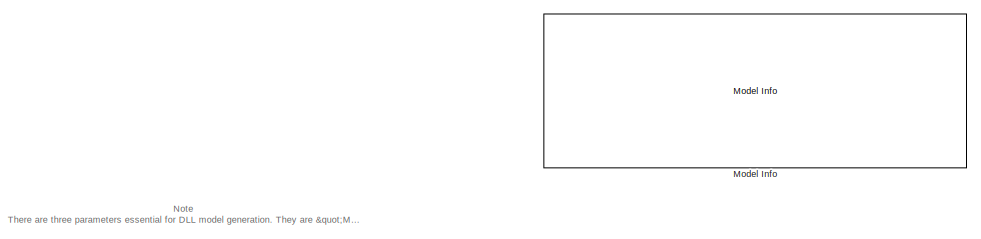
[diagram: root canvas - part 1/3, top center region]
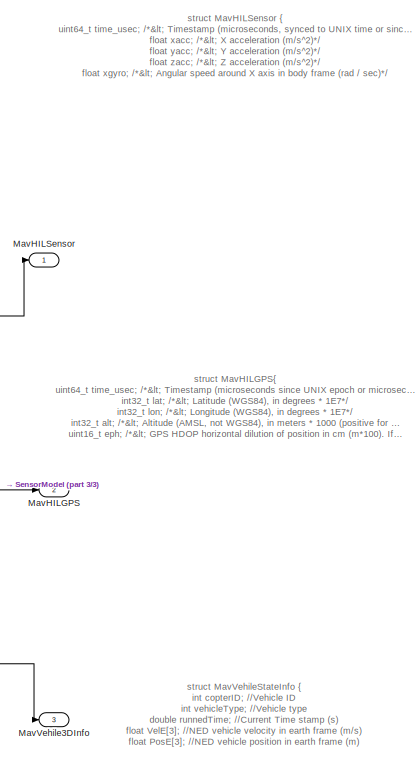
[diagram: root canvas - part 2/3, middle right region]
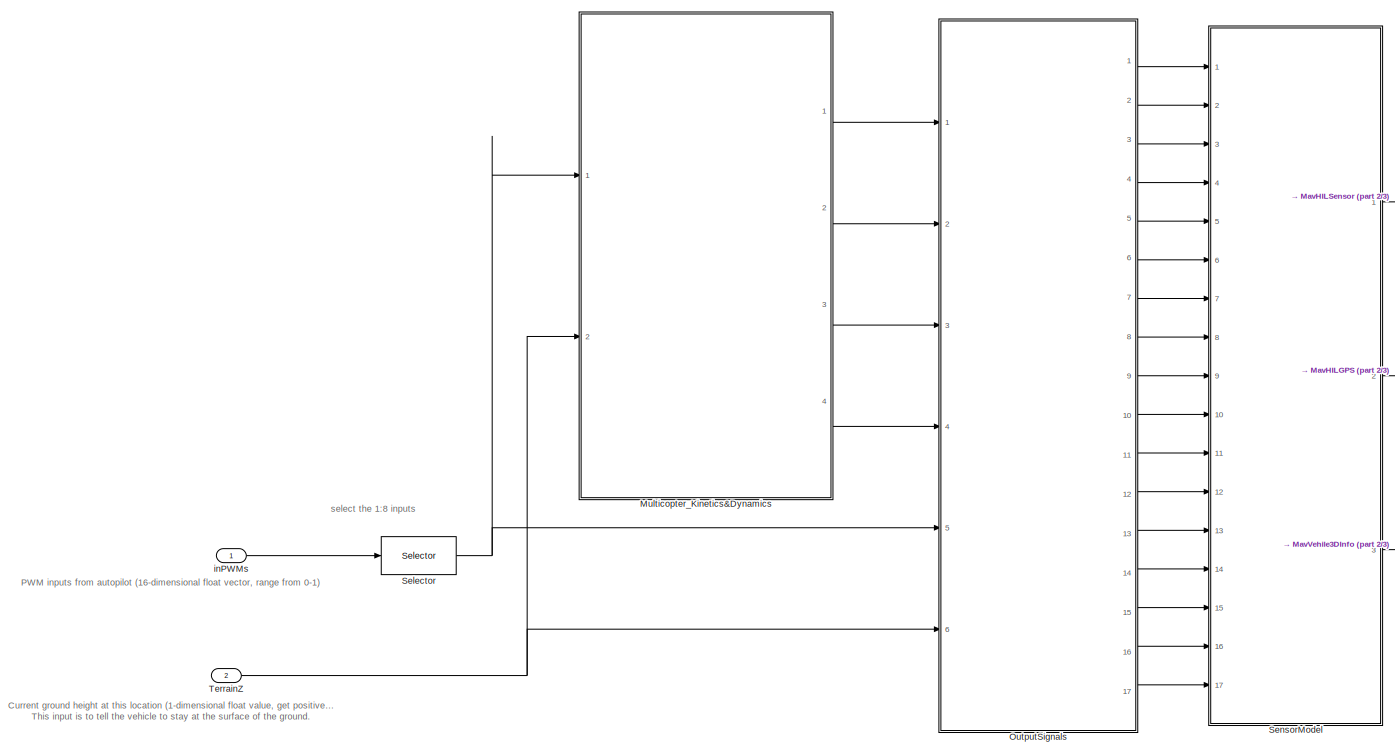
[diagram: root canvas - part 3/3, full width, middle band]
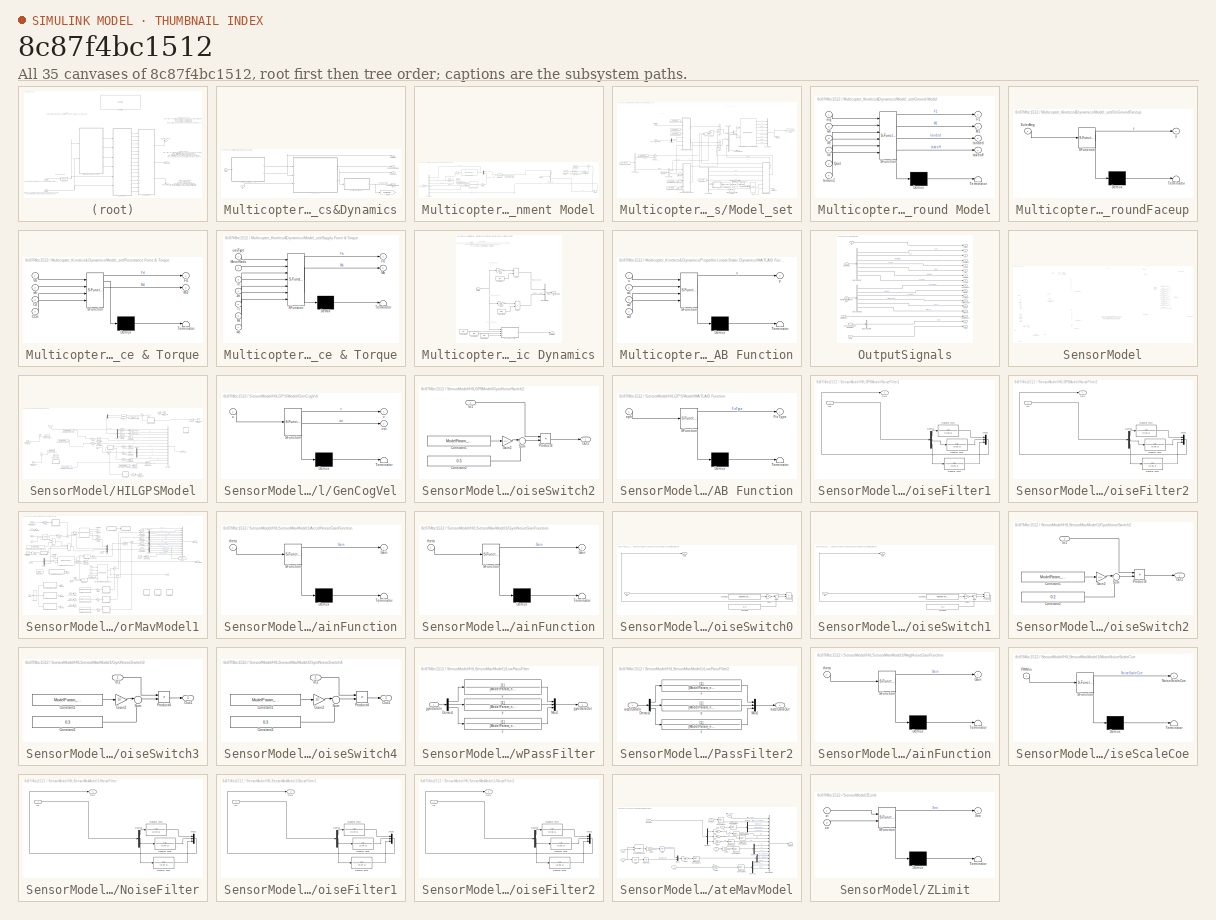
[diagram: thumbnail index - all 35 canvases of the model, root first then tree order]
MODEL slx_8c87f4bc1512
KIND model
CONFIG AbsTol = auto
CONFIG EnableMultiTasking = off
CONFIG FixedStep = 0.001
CONFIG InitFcn = Model_Params;
CONFIG MaxStep = auto
CONFIG MinStep = auto
CONFIG PreLoadFcn = filepath  = fileparts(get_param(bdroot, 'FileName'))\ncd(filepath);
CONFIG RelTol = 1e-3
CONFIG SampleTimeConstraint = Unconstrained
CONFIG SolverName = ode4
CONFIG StartTime = 0.0
CONFIG StopTime = 10
BLOCK [Outport] MavHILGPS
  OutDataTypeStr = Bus: MavLinkGPS
  Port = 2
  VectorParamsAs1DForOutWhenUnconnected = off
BLOCK [Outport] MavHILSensor
  OutDataTypeStr = Bus: MavLinkSensor
  VectorParamsAs1DForOutWhenUnconnected = off
BLOCK [Outport] MavVehile3DInfo
  OutDataTypeStr = Bus: MavVehileInfo
  Port = 3
  VectorParamsAs1DForOutWhenUnconnected = off
BLOCK [Reference] Model Info  REF=simulink/Model-Wide
Utilities/Model Info
  Ports = []
  SourceBlock = simulink/Model-Wide\nUtilities/Model Info
  SourceProductBaseCode = SL
  SourceType = CMBlock
BLOCK [SubSystem] Multicopter_Kinetics&Dynamics
  Ports = [2, 4]
  RequestExecContextInheritance = off
BLOCK [Outport] Multicopter_Kinetics&Dynamics/6 DOF Bus
  Port = 4
  VectorParamsAs1DForOutWhenUnconnected = off
BLOCK [SubSystem] Multicopter_Kinetics&Dynamics/Environment Model
  NameLocation = top
  Ports = [1, 1]
  RequestExecContextInheritance = off
BLOCK [Outport] Multicopter_Kinetics&Dynamics/Environment Model Bus
  VectorParamsAs1DForOutWhenUnconnected = off
BLOCK [Inport] Multicopter_Kinetics&Dynamics/Environment Model/6DOF Bus
BLOCK [BusCreator] Multicopter_Kinetics&Dynamics/Environment Model/Bus Creator
  DisplayOption = bar
  InheritFromInputs = on
  Inputs = 6
  NameLocation = top
  Ports = [6, 1]
BLOCK [BusSelector] Multicopter_Kinetics&Dynamics/Environment Model/Bus Selector
  OutputSignals = Xe,Vb
  Ports = [1, 2]
BLOCK [Constant] Multicopter_Kinetics&Dynamics/Environment Model/Constant_[1 1 1]
  Value = [1,1,1]
  VectorParams1D = off
BLOCK [Outport] Multicopter_Kinetics&Dynamics/Environment Model/Environment Model Bus
  VectorParamsAs1DForOutWhenUnconnected = off
BLOCK [Reference] Multicopter_Kinetics&Dynamics/Environment Model/Flat Earth to LLA  REF=aerolibtransform2/Flat Earth to LLA
  Ports = [2, 2]
  SourceBlock = aerolibtransform2/Flat Earth to LLA
  SourceProductBaseCode = AE
  SourceType = Flat Earth to LLA
BLOCK [Reference] Multicopter_Kinetics&Dynamics/Environment Model/ISA Atmosphere Model  REF=aerolibatmos2/ISA Atmosphere Model
  Ports = [1, 4]
  SourceBlock = aerolibatmos2/ISA Atmosphere Model
  SourceProductBaseCode = AE
  SourceType = International Standard Atmosphere Model
BLOCK [Constant] Multicopter_Kinetics&Dynamics/Environment Model/ModelParam.envAltitude
  Value = ModelParam_envAltitude
BLOCK [Gain] Multicopter_Kinetics&Dynamics/Environment Model/ModelParam.noiseUpperWindBodyRatio
  Gain = ModelParam_noiseUpperWindBodyRatio
BLOCK [Gain] Multicopter_Kinetics&Dynamics/Environment Model/ModelParam.noiseUpperWindBodyRatioSwitch
  Gain = ModelParam_GlobalNoiseGainSwitch
BLOCK [Mux] Multicopter_Kinetics&Dynamics/Environment Model/Mux
  DisplayOption = bar
  Inputs = 2
  Ports = [2, 1]
BLOCK [Product] Multicopter_Kinetics&Dynamics/Environment Model/Product1
  Ports = [2, 1]
BLOCK [Reshape] Multicopter_Kinetics&Dynamics/Environment Model/Reshape
  Ports = [1, 1]
BLOCK [Saturate] Multicopter_Kinetics&Dynamics/Environment Model/Saturation
  LowerLimit = 0
  UpperLimit = 100000
BLOCK [Sum] Multicopter_Kinetics&Dynamics/Environment Model/Sum1
  Inputs = |++
  Ports = [2, 1]
BLOCK [Reference] Multicopter_Kinetics&Dynamics/Environment Model/Temperature Conversion  REF=aerolibconvert2/Temperature Conversion
  Ports = [1, 1]
  SourceBlock = aerolibconvert2/Temperature Conversion
  SourceProductBaseCode = AE
  SourceType = Temperature Conversion
BLOCK [Constant] Multicopter_Kinetics&Dynamics/Environment Model/TemperatureConstant
  Value = 25
BLOCK [Terminator] Multicopter_Kinetics&Dynamics/Environment Model/Terminator2
BLOCK [Terminator] Multicopter_Kinetics&Dynamics/Environment Model/Terminator3
BLOCK [UniformRandomNumber] Multicopter_Kinetics&Dynamics/Environment Model/Uniform Random Number
  Maximum = [1,1,0.5]
  Minimum = [-1,-1,-0.5]
  SampleTime = ModelParam_noiseWindSampTime
  Seed = [564565,6846798,46545]
BLOCK [Reference] Multicopter_Kinetics&Dynamics/Environment Model/WGS84 Gravity Model   REF=aerolibobsolete/WGS84 Gravity Model 
  Ports = [1, 1]
  SourceBlock = aerolibobsolete/WGS84 Gravity Model
  SourceProductBaseCode = AE
  SourceType = WGS84 Gravity Model 3D
BLOCK [Outport] Multicopter_Kinetics&Dynamics/Force Moment Bus
  Port = 3
  VectorParamsAs1DForOutWhenUnconnected = off
BLOCK [Goto] Multicopter_Kinetics&Dynamics/Goto3
  GotoTag = Environment_Bus
  TagVisibility = global
BLOCK [SubSystem] Multicopter_Kinetics&Dynamics/Model_set
  Ports = [3, 2]
  RequestExecContextInheritance = off
BLOCK [Outport] Multicopter_Kinetics&Dynamics/Model_set/6 DOF Bus
  Port = 2
  VectorParamsAs1DForOutWhenUnconnected = off
BLOCK [From] Multicopter_Kinetics&Dynamics/Model_set/6 DOF info
  GotoTag = Six_DOF
  TagVisibility = global
BLOCK [From] Multicopter_Kinetics&Dynamics/Model_set/6 DOF info1
  GotoTag = Six_DOF
  TagVisibility = global
BLOCK [Sum] Multicopter_Kinetics&Dynamics/Model_set/Add1
  IconShape = rectangular
  Inputs = +++
  Ports = [3, 1]
BLOCK [Sum] Multicopter_Kinetics&Dynamics/Model_set/Add2
  IconShape = rectangular
  Inputs = +++
  Ports = [3, 1]
BLOCK [Sum] Multicopter_Kinetics&Dynamics/Model_set/Add4
  IconShape = rectangular
  Ports = [2, 1]
BLOCK [BusCreator] Multicopter_Kinetics&Dynamics/Model_set/Bus Creator
  DisplayOption = bar
  InheritFromInputs = on
  Inputs = 3
  Ports = [3, 1]
BLOCK [BusCreator] Multicopter_Kinetics&Dynamics/Model_set/Bus Creator1
  DisplayOption = bar
  InheritFromInputs = on
  Inputs = 8
  Ports = [8, 1]
BLOCK [BusSelector] Multicopter_Kinetics&Dynamics/Model_set/Bus Selector1
  NameLocation = top
  OutputSignals = gravity,Windb
  Ports = [1, 2]
BLOCK [BusSelector] Multicopter_Kinetics&Dynamics/Model_set/Bus Selector2
  NameLocation = top
  OutputSignals = wb,Xe,Ve,Eular(rad),DCM
  Ports = [1, 5]
BLOCK [BusSelector] Multicopter_Kinetics&Dynamics/Model_set/Bus Selector3
  OutputSignals = Fb,Mb
  Ports = [1, 2]
BLOCK [BusSelector] Multicopter_Kinetics&Dynamics/Model_set/Bus Selector5
  NameLocation = top
  OutputSignals = DCM,wb
  Ports = [1, 2]
BLOCK [Reference] Multicopter_Kinetics&Dynamics/Model_set/Custom Variable Mass 6DOF (Quaternion)  REF=shared6dof/6DOF (Euler Angles)
  Ports = [2, 8]
  SourceBlock = shared6dof/6DOF (Euler Angles)
  SourceProductBaseCode = AE,PW,DR,MT,VE
  SourceType = 6DOF EoM (Body Axis)
BLOCK [Demux] Multicopter_Kinetics&Dynamics/Model_set/Demux
  Outputs = 2
  Ports = [1, 2]
BLOCK [Reference] Multicopter_Kinetics&Dynamics/Model_set/Direction Cosine Matrix to Quaternions  REF=sharedtransform/Direction Cosine Matrix 
to Quaternions
  Ports = [1, 1]
  SourceBlock = sharedtransform/Direction Cosine Matrix \nto Quaternions
  SourceProductBaseCode = AE,PW,DR,MT,VE
  SourceType = DCM2Quaternion
BLOCK [Reference] Multicopter_Kinetics&Dynamics/Model_set/Direction Cosine Matrix to Quaternions1  REF=sharedtransform/Direction Cosine Matrix 
to Quaternions
  Ports = [1, 1]
  SourceBlock = sharedtransform/Direction Cosine Matrix \nto Quaternions
  SourceProductBaseCode = AE,PW,DR,MT,VE
  SourceType = DCM2Quaternion
BLOCK [From] Multicopter_Kinetics&Dynamics/Model_set/Environment_outputs
  GotoTag = Environment_Bus
  TagVisibility = global
BLOCK [Reference] Multicopter_Kinetics&Dynamics/Model_set/Euler to DCM  REF=aerolibtransform2/Wind Angles to 
Direction Cosine Matrix
  Ports = [1, 1]
  SourceBlock = aerolibtransform2/Wind Angles to \nDirection Cosine Matrix
  SourceProductBaseCode = AE
  SourceType = Wind2DCM
BLOCK [Outport] Multicopter_Kinetics&Dynamics/Model_set/Force Moment Bus
  VectorParamsAs1DForOutWhenUnconnected = off
BLOCK [Goto] Multicopter_Kinetics&Dynamics/Model_set/Goto2
  GotoTag = Six_DOF
  TagVisibility = global
BLOCK [SubSystem] Multicopter_Kinetics&Dynamics/Model_set/Ground Model
  ErrorFcn = Stateflow.Translate.translate
  PermitHierarchicalResolution = ExplicitOnly
  Ports = [6, 4]
  RequestExecContextInheritance = off
  SFBlockType = MATLAB Function
  TreatAsAtomicUnit = on
BLOCK [Demux] Multicopter_Kinetics&Dynamics/Model_set/Ground Model/ Demux 
  Outputs = 1
  Ports = [1, 1]
BLOCK [S-Function] Multicopter_Kinetics&Dynamics/Model_set/Ground Model/ SFunction 
  EnableBusSupport = on
  FunctionName = sf_sfun
  PortCounts = [6 5]
  Ports = [6, 5]
  SFcnIsStateOwnerBlock = off
  SFunctionDeploymentMode = off
  Tag = Stateflow S-Function 4
BLOCK [Terminator] Multicopter_Kinetics&Dynamics/Model_set/Ground Model/ Terminator 
BLOCK [Outport] Multicopter_Kinetics&Dynamics/Model_set/Ground Model/F1
  VectorParamsAs1DForOutWhenUnconnected = off
BLOCK [Outport] Multicopter_Kinetics&Dynamics/Model_set/Ground Model/M1
  Port = 2
  VectorParamsAs1DForOutWhenUnconnected = off
BLOCK [Inport] Multicopter_Kinetics&Dynamics/Model_set/Ground Model/Quet
  Port = 5
BLOCK [Inport] Multicopter_Kinetics&Dynamics/Model_set/Ground Model/Ve
  Port = 4
BLOCK [Inport] Multicopter_Kinetics&Dynamics/Model_set/Ground Model/Xe
  Port = 3
BLOCK [Outport] Multicopter_Kinetics&Dynamics/Model_set/Ground Model/landed
  Port = 3
  VectorParamsAs1DForOutWhenUnconnected = off
BLOCK [Inport] Multicopter_Kinetics&Dynamics/Model_set/Ground Model/mg
BLOCK [Outport] Multicopter_Kinetics&Dynamics/Model_set/Ground Model/takeoff
  Port = 4
  VectorParamsAs1DForOutWhenUnconnected = off
BLOCK [Inport] Multicopter_Kinetics&Dynamics/Model_set/Ground Model/terrainZ
  Port = 6
BLOCK [Inport] Multicopter_Kinetics&Dynamics/Model_set/Ground Model/wb
  Port = 2
BLOCK [Constant] Multicopter_Kinetics&Dynamics/Model_set/ModelParam.motorJm
  Value = ModelParam_motorJm
BLOCK [Constant] Multicopter_Kinetics&Dynamics/Model_set/ModelParam.uavCCm
  Value = ModelParam_uavCCm
BLOCK [Constant] Multicopter_Kinetics&Dynamics/Model_set/ModelParam.uavCd
  Value = ModelParam_uavCd
BLOCK [Constant] Multicopter_Kinetics&Dynamics/Model_set/ModelParam.uavMass
  Value = ModelParam_uavMass
BLOCK [Constant] Multicopter_Kinetics&Dynamics/Model_set/ModelParam.uavR
  Value = ModelParam_uavR
BLOCK [Constant] Multicopter_Kinetics&Dynamics/Model_set/ModelParam.uavType
  Value = ModelParam_uavType
BLOCK [Inport] Multicopter_Kinetics&Dynamics/Model_set/Motor rads
  Port = 2
BLOCK [SubSystem] Multicopter_Kinetics&Dynamics/Model_set/OnGroundFaceup
  ErrorFcn = Stateflow.Translate.translate
  PermitHierarchicalResolution = ExplicitOnly
  Ports = [1, 1]
  RequestExecContextInheritance = off
  SFBlockType = MATLAB Function
  TreatAsAtomicUnit = on
BLOCK [Demux] Multicopter_Kinetics&Dynamics/Model_set/OnGroundFaceup/ Demux 
  Outputs = 1
  Ports = [1, 1]
BLOCK [S-Function] Multicopter_Kinetics&Dynamics/Model_set/OnGroundFaceup/ SFunction 
  EnableBusSupport = on
  FunctionName = sf_sfun
  PortCounts = [1 2]
  Ports = [1, 2]
  SFcnIsStateOwnerBlock = off
  SFunctionDeploymentMode = off
  Tag = Stateflow S-Function 9
BLOCK [Terminator] Multicopter_Kinetics&Dynamics/Model_set/OnGroundFaceup/ Terminator 
BLOCK [Inport] Multicopter_Kinetics&Dynamics/Model_set/OnGroundFaceup/EulerAng
BLOCK [Outport] Multicopter_Kinetics&Dynamics/Model_set/OnGroundFaceup/y
  VectorParamsAs1DForOutWhenUnconnected = off
BLOCK [Product] Multicopter_Kinetics&Dynamics/Model_set/Product
  Multiplication = Matrix(*)
  Ports = [2, 1]
BLOCK [Product] Multicopter_Kinetics&Dynamics/Model_set/Product1
  Ports = [2, 1]
BLOCK [Inport] Multicopter_Kinetics&Dynamics/Model_set/Prop_Thrust&Torque
BLOCK [Reference] Multicopter_Kinetics&Dynamics/Model_set/Quaternion Inverse  REF=aerolibutil/Quaternion
Inverse
  Ports = [1, 1]
  SourceBlock = aerolibutil/Quaternion\nInverse
  SourceProductBaseCode = AE
  SourceType = Quaternion Inverse
BLOCK [Reference] Multicopter_Kinetics&Dynamics/Model_set/Quaternion Multiplication  REF=aerolibutil/Quaternion
Multiplication
  Ports = [2, 1]
  SourceBlock = aerolibutil/Quaternion\nMultiplication
  SourceProductBaseCode = AE
  SourceType = Quaternion Multiplication
BLOCK [SubSystem] Multicopter_Kinetics&Dynamics/Model_set/Resistance Force & Torque
  ErrorFcn = Stateflow.Translate.translate
  PermitHierarchicalResolution = ExplicitOnly
  Ports = [4, 2]
  RequestExecContextInheritance = off
  SFBlockType = MATLAB Function
  TreatAsAtomicUnit = on
BLOCK [Demux] Multicopter_Kinetics&Dynamics/Model_set/Resistance Force & Torque/ Demux 
  Outputs = 1
  Ports = [1, 1]
BLOCK [S-Function] Multicopter_Kinetics&Dynamics/Model_set/Resistance Force & Torque/ SFunction 
  EnableBusSupport = on
  FunctionName = sf_sfun
  PortCounts = [4 3]
  Ports = [4, 3]
  SFcnIsStateOwnerBlock = off
  SFunctionDeploymentMode = off
  Tag = Stateflow S-Function 5
BLOCK [Terminator] Multicopter_Kinetics&Dynamics/Model_set/Resistance Force & Torque/ Terminator 
BLOCK [Inport] Multicopter_Kinetics&Dynamics/Model_set/Resistance Force & Torque/CCm
  Port = 4
BLOCK [Inport] Multicopter_Kinetics&Dynamics/Model_set/Resistance Force & Torque/Cd
  Port = 3
BLOCK [Outport] Multicopter_Kinetics&Dynamics/Model_set/Resistance Force & Torque/Fd
  VectorParamsAs1DForOutWhenUnconnected = off
BLOCK [Outport] Multicopter_Kinetics&Dynamics/Model_set/Resistance Force & Torque/Md
  Port = 2
  VectorParamsAs1DForOutWhenUnconnected = off
BLOCK [Inport] Multicopter_Kinetics&Dynamics/Model_set/Resistance Force & Torque/Vb
BLOCK [Inport] Multicopter_Kinetics&Dynamics/Model_set/Resistance Force & Torque/wb
  Port = 2
BLOCK [SubSystem] Multicopter_Kinetics&Dynamics/Model_set/Supply Force & Torque
  ErrorFcn = Stateflow.Translate.translate
  PermitHierarchicalResolution = ExplicitOnly
  Ports = [7, 2]
  RequestExecContextInheritance = off
  SFBlockType = MATLAB Function
  TreatAsAtomicUnit = on
BLOCK [Demux] Multicopter_Kinetics&Dynamics/Model_set/Supply Force & Torque/ Demux 
  Outputs = 1
  Ports = [1, 1]
BLOCK [S-Function] Multicopter_Kinetics&Dynamics/Model_set/Supply Force & Torque/ SFunction 
  EnableBusSupport = on
  FunctionName = sf_sfun
  PortCounts = [7 3]
  Ports = [7, 3]
  SFcnIsStateOwnerBlock = off
  SFunctionDeploymentMode = off
  Tag = Stateflow S-Function 1
BLOCK [Terminator] Multicopter_Kinetics&Dynamics/Model_set/Supply Force & Torque/ Terminator 
BLOCK [Outport] Multicopter_Kinetics&Dynamics/Model_set/Supply Force & Torque/Fb
  VectorParamsAs1DForOutWhenUnconnected = off
BLOCK [Inport] Multicopter_Kinetics&Dynamics/Model_set/Supply Force & Torque/Jm
  Port = 4
BLOCK [Outport] Multicopter_Kinetics&Dynamics/Model_set/Supply Force & Torque/Mb
  Port = 2
  VectorParamsAs1DForOutWhenUnconnected = off
BLOCK [Inport] Multicopter_Kinetics&Dynamics/Model_set/Supply Force & Torque/Mi
  Port = 6
BLOCK [Inport] Multicopter_Kinetics&Dynamics/Model_set/Supply Force & Torque/MotorRads
  Port = 2
BLOCK [Inport] Multicopter_Kinetics&Dynamics/Model_set/Supply Force & Torque/R
  Port = 3
BLOCK [Inport] Multicopter_Kinetics&Dynamics/Model_set/Supply Force & Torque/Ti
  Port = 5
BLOCK [Inport] Multicopter_Kinetics&Dynamics/Model_set/Supply Force & Torque/uavType
BLOCK [Inport] Multicopter_Kinetics&Dynamics/Model_set/Supply Force & Torque/wb
  Port = 7
BLOCK [Terminator] Multicopter_Kinetics&Dynamics/Model_set/Terminator1
BLOCK [Math] Multicopter_Kinetics&Dynamics/Model_set/Transpose
  Operator = transpose
  Ports = [1, 1]
  SignedPower = on
BLOCK [Math] Multicopter_Kinetics&Dynamics/Model_set/Transpose1
  Operator = transpose
  Ports = [1, 1]
  SignedPower = on
BLOCK [Math] Multicopter_Kinetics&Dynamics/Model_set/Transpose2
  Operator = transpose
  Ports = [1, 1]
  SignedPower = on
BLOCK [Inport] Multicopter_Kinetics&Dynamics/Model_set/tZ
  Port = 3
BLOCK [Outport] Multicopter_Kinetics&Dynamics/Motor rads
  Port = 2
  VectorParamsAs1DForOutWhenUnconnected = off
BLOCK [Inport] Multicopter_Kinetics&Dynamics/PWM
BLOCK [SubSystem] Multicopter_Kinetics&Dynamics/Properller Linear-Static Dynamics
  Ports = [1, 2]
  RTWSystemCode = Reusable function
  RequestExecContextInheritance = off
  TreatAsAtomicUnit = on
BLOCK [Sum] Multicopter_Kinetics&Dynamics/Properller Linear-Static Dynamics/Add
  IconShape = rectangular
  Ports = [2, 1]
BLOCK [Sum] Multicopter_Kinetics&Dynamics/Properller Linear-Static Dynamics/Add1
  IconShape = rectangular
  Ports = [2, 1]
BLOCK [BusCreator] Multicopter_Kinetics&Dynamics/Properller Linear-Static Dynamics/Bus Creator
  DisplayOption = bar
  InheritFromInputs = on
  Inputs = 2
  Ports = [2, 1]
BLOCK [Constant] Multicopter_Kinetics&Dynamics/Properller Linear-Static Dynamics/Constant
  Value = bT
BLOCK [Constant] Multicopter_Kinetics&Dynamics/Properller Linear-Static Dynamics/Constant1
  Value = aM
BLOCK [Constant] Multicopter_Kinetics&Dynamics/Properller Linear-Static Dynamics/Constant2
  Value = w1
BLOCK [Constant] Multicopter_Kinetics&Dynamics/Properller Linear-Static Dynamics/Constant3
  Value = w2
BLOCK [Constant] Multicopter_Kinetics&Dynamics/Properller Linear-Static Dynamics/Constant4
  Value = w3
BLOCK [Gain] Multicopter_Kinetics&Dynamics/Properller Linear-Static Dynamics/Gain
  Gain = aT
BLOCK [Gain] Multicopter_Kinetics&Dynamics/Properller Linear-Static Dynamics/Gain1
  Gain = aM
BLOCK [SubSystem] Multicopter_Kinetics&Dynamics/Properller Linear-Static Dynamics/MATLAB Function
  ErrorFcn = Stateflow.Translate.translate
  PermitHierarchicalResolution = ExplicitOnly
  Ports = [4, 1]
  RequestExecContextInheritance = off
  SFBlockType = MATLAB Function
  TreatAsAtomicUnit = on
BLOCK [Demux] Multicopter_Kinetics&Dynamics/Properller Linear-Static Dynamics/MATLAB Function/ Demux 
  Outputs = 1
  Ports = [1, 1]
BLOCK [S-Function] Multicopter_Kinetics&Dynamics/Properller Linear-Static Dynamics/MATLAB Function/ SFunction 
  EnableBusSupport = on
  FunctionName = sf_sfun
  PortCounts = [4 2]
  Ports = [4, 2]
  SFcnIsStateOwnerBlock = off
  SFunctionDeploymentMode = off
  Tag = Stateflow S-Function 2
BLOCK [Terminator] Multicopter_Kinetics&Dynamics/Properller Linear-Static Dynamics/MATLAB Function/ Terminator 
BLOCK [Inport] Multicopter_Kinetics&Dynamics/Properller Linear-Static Dynamics/MATLAB Function/u
BLOCK [Inport] Multicopter_Kinetics&Dynamics/Properller Linear-Static Dynamics/MATLAB Function/w1
  Port = 2
BLOCK [Inport] Multicopter_Kinetics&Dynamics/Properller Linear-Static Dynamics/MATLAB Function/w2
  Port = 3
BLOCK [Inport] Multicopter_Kinetics&Dynamics/Properller Linear-Static Dynamics/MATLAB Function/w3
  Port = 4
BLOCK [Outport] Multicopter_Kinetics&Dynamics/Properller Linear-Static Dynamics/MATLAB Function/y
  VectorParamsAs1DForOutWhenUnconnected = off
BLOCK [Outport] Multicopter_Kinetics&Dynamics/Properller Linear-Static Dynamics/Motor rads
  Port = 2
  VectorParamsAs1DForOutWhenUnconnected = off
BLOCK [Inport] Multicopter_Kinetics&Dynamics/Properller Linear-Static Dynamics/PWM
BLOCK [Outport] Multicopter_Kinetics&Dynamics/Properller Linear-Static Dynamics/Prop_Thrust&Torque
  VectorParamsAs1DForOutWhenUnconnected = off
BLOCK [Inport] Multicopter_Kinetics&Dynamics/tZ
  Port = 2
BLOCK [SubSystem] OutputSignals
  Ports = [6, 17]
  RequestExecContextInheritance = off
BLOCK [Inport] OutputSignals/6DOF Bus
  Port = 4
BLOCK [Outport] OutputSignals/<AccB>
  Port = 8
  VectorParamsAs1DForOutWhenUnconnected = off
BLOCK [Outport] OutputSignals/<AirPressure>
  Port = 12
  VectorParamsAs1DForOutWhenUnconnected = off
BLOCK [Outport] OutputSignals/<DCM>
  Port = 5
  VectorParamsAs1DForOutWhenUnconnected = off
BLOCK [Outport] OutputSignals/<Eular(rad)>
  Port = 4
  VectorParamsAs1DForOutWhenUnconnected = off
BLOCK [Outport] OutputSignals/<Fb>
  Port = 16
  VectorParamsAs1DForOutWhenUnconnected = off
BLOCK [Outport] OutputSignals/<MotorRads>
  Port = 15
  VectorParamsAs1DForOutWhenUnconnected = off
BLOCK [Outport] OutputSignals/<PosGPS>
  Port = 9
  VectorParamsAs1DForOutWhenUnconnected = off
BLOCK [Outport] OutputSignals/<Rho>
  Port = 13
  VectorParamsAs1DForOutWhenUnconnected = off
BLOCK [Outport] OutputSignals/<TempC>
  Port = 11
  VectorParamsAs1DForOutWhenUnconnected = off
BLOCK [Outport] OutputSignals/<Ve>
  Port = 2
  VectorParamsAs1DForOutWhenUnconnected = off
BLOCK [Outport] OutputSignals/<Windb>
  Port = 14
  VectorParamsAs1DForOutWhenUnconnected = off
BLOCK [Outport] OutputSignals/<Xe>
  Port = 3
  VectorParamsAs1DForOutWhenUnconnected = off
BLOCK [Outport] OutputSignals/<dwb//dt>
  Port = 7
  VectorParamsAs1DForOutWhenUnconnected = off
BLOCK [Outport] OutputSignals/<gravity>
  Port = 10
  VectorParamsAs1DForOutWhenUnconnected = off
BLOCK [Outport] OutputSignals/<wb>
  Port = 6
  VectorParamsAs1DForOutWhenUnconnected = off
BLOCK [BusSelector] OutputSignals/Bus Selector
  OutputSignals = Ve,Xe,Eular(rad),DCM,wb,dwb/dt,AccB
  Ports = [1, 7]
BLOCK [BusSelector] OutputSignals/Bus Selector1
  OutputSignals = PosGPS,gravity,TempC,AirPressure,Rho,Windb
  Ports = [1, 6]
BLOCK [BusSelector] OutputSignals/Bus Selector4
  OutputSignals = Fb
  Ports = [1, 1]
BLOCK [Inport] OutputSignals/Environment Model Bus
BLOCK [Inport] OutputSignals/Force and Moment Model Bus
  Port = 3
BLOCK [Inport] OutputSignals/MotorRads
  Port = 2
BLOCK [Inport] OutputSignals/PWM
  Port = 5
BLOCK [Outport] OutputSignals/PWMs
  Port = 17
  VectorParamsAs1DForOutWhenUnconnected = off
BLOCK [Outport] OutputSignals/TerrainZ
  VectorParamsAs1DForOutWhenUnconnected = off
BLOCK [Inport] OutputSignals/tZ
  Port = 6
BLOCK [Selector] Selector
  IndexOptions = Index vector (dialog)
  Indices = [1:8]
  InputPortWidth = 16
  OutputSizes = 1
  Ports = [1, 1]
BLOCK [SubSystem] SensorModel
  Ports = [17, 3]
  RequestExecContextInheritance = off
BLOCK [Inport] SensorModel/<AccB>
  Port = 8
BLOCK [Inport] SensorModel/<AirPressure>
  Port = 12
BLOCK [Inport] SensorModel/<DCM>
  Port = 5
BLOCK [Inport] SensorModel/<Eular(rad)>
  Port = 4
BLOCK [Inport] SensorModel/<Fb>
  Port = 16
BLOCK [Inport] SensorModel/<PosGPS>
  Port = 9
BLOCK [Inport] SensorModel/<Rho>
  Port = 13
BLOCK [Inport] SensorModel/<TempC>
  Port = 11
BLOCK [Inport] SensorModel/<Ve>
  Port = 2
BLOCK [Inport] SensorModel/<Windb>
  Port = 14
BLOCK [Inport] SensorModel/<Xe>
  Port = 3
BLOCK [Inport] SensorModel/<dwb//dt>
  Port = 7
BLOCK [Inport] SensorModel/<gravity>
  Port = 10
BLOCK [Inport] SensorModel/<wb>
  Port = 6
BLOCK [BusCreator] SensorModel/Bus Creator
  DisplayOption = bar
  InheritFromInputs = on
  Inputs = 11
  OutDataTypeStr = Bus: MavVehileInfo
  Ports = [11, 1]
BLOCK [Clock] SensorModel/Clock1
BLOCK [Constant] SensorModel/CopterID
BLOCK [DataTypeConversion] SensorModel/Data Type Conversion
  OutDataTypeStr = int32
  RndMeth = Floor
  SaturateOnIntegerOverflow = off
BLOCK [DataTypeConversion] SensorModel/Data Type Conversion1
  OutDataTypeStr = uint32
  RndMeth = Floor
  SaturateOnIntegerOverflow = off
BLOCK [DataTypeConversion] SensorModel/Data Type Conversion10
  OutDataTypeStr = single
  RndMeth = Floor
  SaturateOnIntegerOverflow = off
BLOCK [DataTypeConversion] SensorModel/Data Type Conversion11
  OutDataTypeStr = double
  RndMeth = Floor
  SaturateOnIntegerOverflow = off
BLOCK [DataTypeConversion] SensorModel/Data Type Conversion2
  OutDataTypeStr = int32
  RndMeth = Floor
  SaturateOnIntegerOverflow = off
BLOCK [DataTypeConversion] SensorModel/Data Type Conversion3
  OutDataTypeStr = double
  RndMeth = Floor
  SaturateOnIntegerOverflow = off
BLOCK [DataTypeConversion] SensorModel/Data Type Conversion4
  OutDataTypeStr = single
  RndMeth = Floor
  SaturateOnIntegerOverflow = off
BLOCK [DataTypeConversion] SensorModel/Data Type Conversion5
  OutDataTypeStr = single
  RndMeth = Floor
  SaturateOnIntegerOverflow = off
BLOCK [DataTypeConversion] SensorModel/Data Type Conversion6
  OutDataTypeStr = single
  RndMeth = Floor
  SaturateOnIntegerOverflow = off
BLOCK [DataTypeConversion] SensorModel/Data Type Conversion7
  OutDataTypeStr = single
  RndMeth = Floor
  SaturateOnIntegerOverflow = off
BLOCK [DataTypeConversion] SensorModel/Data Type Conversion8
  OutDataTypeStr = single
  RndMeth = Floor
  SaturateOnIntegerOverflow = off
BLOCK [DataTypeConversion] SensorModel/Data Type Conversion9
  OutDataTypeStr = single
  RndMeth = Floor
  SaturateOnIntegerOverflow = off
BLOCK [Reference] SensorModel/Direction Cosine Matrix to Quaternions  REF=sharedtransform/Direction Cosine Matrix 
to Quaternions
  Ports = [1, 1]
  SourceBlock = sharedtransform/Direction Cosine Matrix \nto Quaternions
  SourceProductBaseCode = AE,PW,DR,MT,VE
  SourceType = DCM2Quaternion
BLOCK [Product] SensorModel/Divide
  Inputs = */
  Ports = [2, 1]
BLOCK [Gain] SensorModel/Gain
  Gain = 60/2/pi
BLOCK [Gain] SensorModel/Gain_clock
  Gain = 1E6
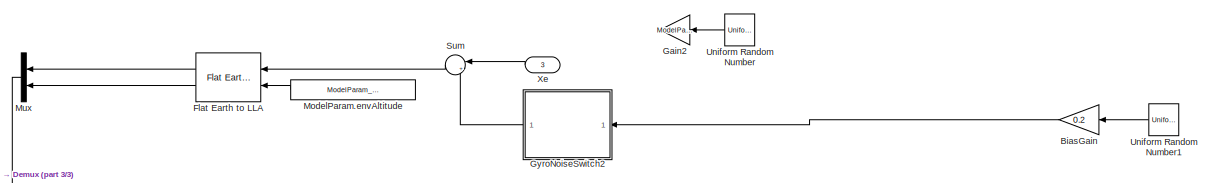
[diagram: SensorModel/HILGPSModel - part 1/3, top right region]
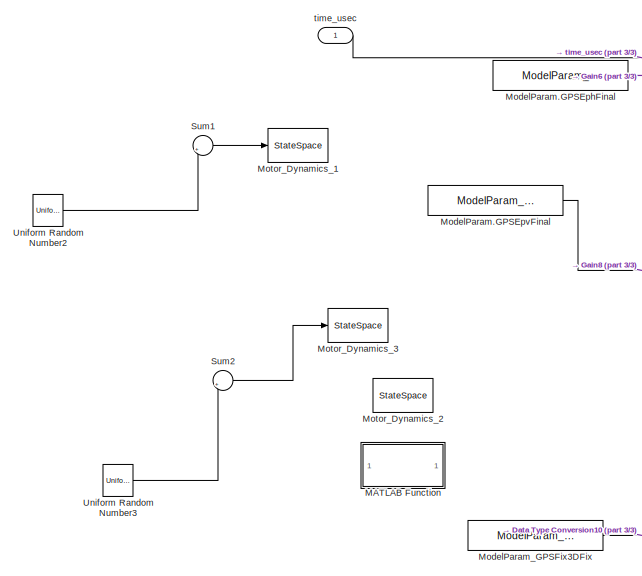
[diagram: SensorModel/HILGPSModel - part 2/3, middle left region]
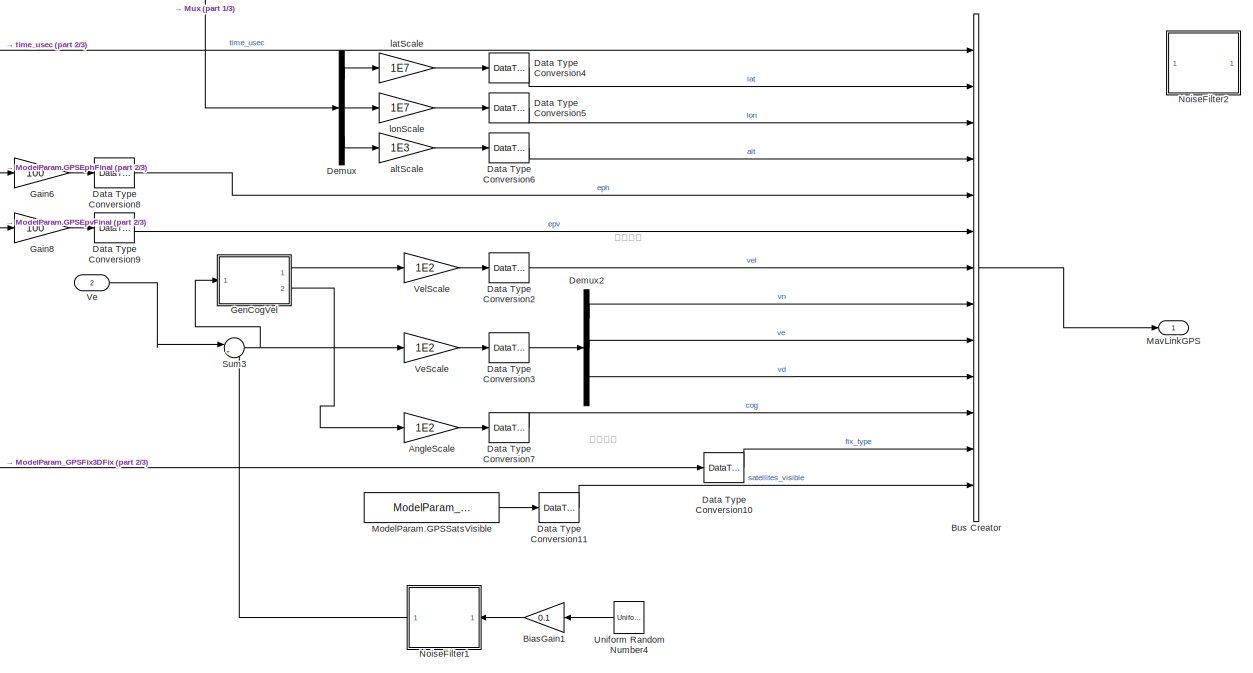
[diagram: SensorModel/HILGPSModel - part 3/3, center side, full height]
BLOCK [SubSystem] SensorModel/HILGPSModel
  Ports = [3, 1]
  RequestExecContextInheritance = off
BLOCK [Gain] SensorModel/HILGPSModel/AngleScale
  Gain = 1E2
BLOCK [Gain] SensorModel/HILGPSModel/BiasGain
  Gain = 0.2
BLOCK [Gain] SensorModel/HILGPSModel/BiasGain1
  Gain = 0.1
BLOCK [BusCreator] SensorModel/HILGPSModel/Bus Creator
  DisplayOption = bar
  InheritFromInputs = on
  Inputs = 13
  NonVirtualBus = on
  OutDataTypeStr = Bus: MavLinkGPS
  Ports = [13, 1]
BLOCK [DataTypeConversion] SensorModel/HILGPSModel/Data Type Conversion10
  OutDataTypeStr = uint8
  RndMeth = Round
  SaturateOnIntegerOverflow = off
BLOCK [DataTypeConversion] SensorModel/HILGPSModel/Data Type Conversion11
  OutDataTypeStr = uint8
  RndMeth = Round
  SaturateOnIntegerOverflow = off
BLOCK [DataTypeConversion] SensorModel/HILGPSModel/Data Type Conversion2
  OutDataTypeStr = uint16
  RndMeth = Round
  SaturateOnIntegerOverflow = off
BLOCK [DataTypeConversion] SensorModel/HILGPSModel/Data Type Conversion3
  OutDataTypeStr = int16
  RndMeth = Round
  SaturateOnIntegerOverflow = off
BLOCK [DataTypeConversion] SensorModel/HILGPSModel/Data Type Conversion4
  OutDataTypeStr = int32
  RndMeth = Round
  SaturateOnIntegerOverflow = off
BLOCK [DataTypeConversion] SensorModel/HILGPSModel/Data Type Conversion5
  OutDataTypeStr = int32
  RndMeth = Round
  SaturateOnIntegerOverflow = off
BLOCK [DataTypeConversion] SensorModel/HILGPSModel/Data Type Conversion6
  OutDataTypeStr = int32
  RndMeth = Round
  SaturateOnIntegerOverflow = off
BLOCK [DataTypeConversion] SensorModel/HILGPSModel/Data Type Conversion7
  OutDataTypeStr = uint16
  RndMeth = Round
  SaturateOnIntegerOverflow = off
BLOCK [DataTypeConversion] SensorModel/HILGPSModel/Data Type Conversion8
  OutDataTypeStr = uint16
  RndMeth = Round
  SaturateOnIntegerOverflow = off
BLOCK [DataTypeConversion] SensorModel/HILGPSModel/Data Type Conversion9
  OutDataTypeStr = uint16
  RndMeth = Round
  SaturateOnIntegerOverflow = off
BLOCK [Demux] SensorModel/HILGPSModel/Demux
  Outputs = 3
  Ports = [1, 3]
BLOCK [Demux] SensorModel/HILGPSModel/Demux2
  Outputs = 3
  Ports = [1, 3]
BLOCK [Reference] SensorModel/HILGPSModel/Flat Earth to LLA  REF=aerolibtransform2/Flat Earth to LLA
  Ports = [2, 2]
  SourceBlock = aerolibtransform2/Flat Earth to LLA
  SourceProductBaseCode = AE
  SourceType = Flat Earth to LLA
BLOCK [Gain] SensorModel/HILGPSModel/Gain2
  Commented = on
  Gain = ModelParam_noiseUpperGPS
BLOCK [Gain] SensorModel/HILGPSModel/Gain6
  Gain = 100
BLOCK [Gain] SensorModel/HILGPSModel/Gain8
  Gain = 100
BLOCK [SubSystem] SensorModel/HILGPSModel/GenCogVel
  ErrorFcn = Stateflow.Translate.translate
  PermitHierarchicalResolution = ExplicitOnly
  Ports = [1, 2]
  RequestExecContextInheritance = off
  SFBlockType = MATLAB Function
  TreatAsAtomicUnit = on
BLOCK [Demux] SensorModel/HILGPSModel/GenCogVel/ Demux 
  Outputs = 1
  Ports = [1, 1]
BLOCK [S-Function] SensorModel/HILGPSModel/GenCogVel/ SFunction 
  EnableBusSupport = on
  FunctionName = sf_sfun
  PortCounts = [1 3]
  Ports = [1, 3]
  SFcnIsStateOwnerBlock = off
  SFunctionDeploymentMode = off
  Tag = Stateflow S-Function 7
BLOCK [Terminator] SensorModel/HILGPSModel/GenCogVel/ Terminator 
BLOCK [Outport] SensorModel/HILGPSModel/GenCogVel/cot
  Port = 2
  VectorParamsAs1DForOutWhenUnconnected = off
BLOCK [Inport] SensorModel/HILGPSModel/GenCogVel/u
BLOCK [Outport] SensorModel/HILGPSModel/GenCogVel/v
  VectorParamsAs1DForOutWhenUnconnected = off
BLOCK [SubSystem] SensorModel/HILGPSModel/GyroNoiseSwitch2
  Ports = [1, 1]
  RequestExecContextInheritance = off
BLOCK [Constant] SensorModel/HILGPSModel/GyroNoiseSwitch2/Constant1
  Value = ModelParam_GlobalNoiseGainSwitch
BLOCK [Constant] SensorModel/HILGPSModel/GyroNoiseSwitch2/Constant2
  Value = 0.3
BLOCK [Gain] SensorModel/HILGPSModel/GyroNoiseSwitch2/Gain2
  Gain = 0.7
BLOCK [Inport] SensorModel/HILGPSModel/GyroNoiseSwitch2/In1
BLOCK [Outport] SensorModel/HILGPSModel/GyroNoiseSwitch2/Out1
  VectorParamsAs1DForOutWhenUnconnected = off
BLOCK [Product] SensorModel/HILGPSModel/GyroNoiseSwitch2/Product4
  Ports = [2, 1]
BLOCK [Sum] SensorModel/HILGPSModel/GyroNoiseSwitch2/Sum
  Inputs = |++
  Ports = [2, 1]
BLOCK [SubSystem] SensorModel/HILGPSModel/MATLAB Function
  Commented = on
  ErrorFcn = Stateflow.Translate.translate
  PermitHierarchicalResolution = ExplicitOnly
  Ports = [1, 1]
  RequestExecContextInheritance = off
  SFBlockType = MATLAB Function
  TreatAsAtomicUnit = on
BLOCK [Demux] SensorModel/HILGPSModel/MATLAB Function/ Demux 
  Outputs = 1
  Ports = [1, 1]
BLOCK [S-Function] SensorModel/HILGPSModel/MATLAB Function/ SFunction 
  EnableBusSupport = on
  FunctionName = sf_sfun
  PortCounts = [1 2]
  Ports = [1, 2]
  SFcnIsStateOwnerBlock = off
  SFunctionDeploymentMode = off
  Tag = Stateflow S-Function 8
BLOCK [Terminator] SensorModel/HILGPSModel/MATLAB Function/ Terminator 
BLOCK [Outport] SensorModel/HILGPSModel/MATLAB Function/FixType
  VectorParamsAs1DForOutWhenUnconnected = off
BLOCK [Inport] SensorModel/HILGPSModel/MATLAB Function/eph
BLOCK [Outport] SensorModel/HILGPSModel/MavLinkGPS
  VectorParamsAs1DForOutWhenUnconnected = off
BLOCK [Constant] SensorModel/HILGPSModel/ModelParam.GPSEphFinal
  Value = ModelParam_GPSEphFinal
BLOCK [Constant] SensorModel/HILGPSModel/ModelParam.GPSEpvFinal
  Value = ModelParam_GPSEpvFinal
BLOCK [Constant] SensorModel/HILGPSModel/ModelParam.GPSSatsVisible
  Value = ModelParam_GPSSatsVisible
BLOCK [Constant] SensorModel/HILGPSModel/ModelParam.envAltitude
  Value = ModelParam_envAltitude
BLOCK [Constant] SensorModel/HILGPSModel/ModelParam_GPSFix3DFix
  Value = ModelParam_GPSFix3DFix
BLOCK [StateSpace] SensorModel/HILGPSModel/Motor_Dynamics_1
  A = -1/0.2
  C = 1/0.2
  Commented = on
  D = 0
  InitialCondition = 20*0.2
  Ports = [1, 1]
BLOCK [StateSpace] SensorModel/HILGPSModel/Motor_Dynamics_2
  A = -1/ModelParam_GPSEpvTimeConstant
  C = 1/ModelParam_GPSEpvTimeConstant
  Commented = on
  D = 0
  InitialCondition = ModelParam_GPSEpvInitial*ModelParam_GPSEpvTimeConstant
  Ports = [1, 1]
BLOCK [StateSpace] SensorModel/HILGPSModel/Motor_Dynamics_3
  A = -1/0.2
  C = 1/0.2
  Commented = on
  D = 0
  InitialCondition = 20*0.2
  Ports = [1, 1]
BLOCK [Mux] SensorModel/HILGPSModel/Mux
  DisplayOption = bar
  Inputs = 2
  Ports = [2, 1]
BLOCK [SubSystem] SensorModel/HILGPSModel/NoiseFilter1
  Ports = [1, 1]
  RequestExecContextInheritance = off
BLOCK [Demux] SensorModel/HILGPSModel/NoiseFilter1/Demux
  Outputs = 3
  Ports = [1, 3]
BLOCK [Inport] SensorModel/HILGPSModel/NoiseFilter1/In1
BLOCK [Mux] SensorModel/HILGPSModel/NoiseFilter1/Mux1
  DisplayOption = bar
  Inputs = 3
  Ports = [3, 1]
BLOCK [Outport] SensorModel/HILGPSModel/NoiseFilter1/Out1
  VectorParamsAs1DForOutWhenUnconnected = off
BLOCK [TransferFcn] SensorModel/HILGPSModel/NoiseFilter1/Transfer Fcn1
  Denominator = [0.05 1]
BLOCK [TransferFcn] SensorModel/HILGPSModel/NoiseFilter1/Transfer Fcn2
  Denominator = [0.05 1]
BLOCK [TransferFcn] SensorModel/HILGPSModel/NoiseFilter1/Transfer Fcn4
  Denominator = [0.05 1]
BLOCK [SubSystem] SensorModel/HILGPSModel/NoiseFilter2
  Commented = on
  Ports = [1, 1]
  RequestExecContextInheritance = off
BLOCK [Demux] SensorModel/HILGPSModel/NoiseFilter2/Demux
  Outputs = 3
  Ports = [1, 3]
BLOCK [Inport] SensorModel/HILGPSModel/NoiseFilter2/In1
BLOCK [Mux] SensorModel/HILGPSModel/NoiseFilter2/Mux1
  DisplayOption = bar
  Inputs = 3
  Ports = [3, 1]
BLOCK [Outport] SensorModel/HILGPSModel/NoiseFilter2/Out1
  VectorParamsAs1DForOutWhenUnconnected = off
BLOCK [TransferFcn] SensorModel/HILGPSModel/NoiseFilter2/Transfer Fcn1
  Denominator = [0.05 1]
BLOCK [TransferFcn] SensorModel/HILGPSModel/NoiseFilter2/Transfer Fcn2
  Denominator = [0.05 1]
BLOCK [TransferFcn] SensorModel/HILGPSModel/NoiseFilter2/Transfer Fcn4
  Denominator = [0.05 1]
BLOCK [Sum] SensorModel/HILGPSModel/Sum
  Inputs = |++
  Ports = [2, 1]
BLOCK [Sum] SensorModel/HILGPSModel/Sum1
  Commented = on
  Inputs = |++
  Ports = [2, 1]
BLOCK [Sum] SensorModel/HILGPSModel/Sum2
  Commented = on
  Inputs = |++
  Ports = [2, 1]
BLOCK [Sum] SensorModel/HILGPSModel/Sum3
  Inputs = |++
  Ports = [2, 1]
BLOCK [UniformRandomNumber] SensorModel/HILGPSModel/Uniform Random Number
  Commented = on
  Maximum = [1,1,3]
  Minimum = [-1,-1,-3]
  SampleTime = ModelParam_timeSamp
  Seed = [14524,7875,698]
BLOCK [UniformRandomNumber] SensorModel/HILGPSModel/Uniform Random Number1
  Maximum = [1,1,2]
  Minimum = [-1,-1,-2]
  SampleTime = ModelParam_noiseGPSSampTime
  Seed = [1452,787,69]
BLOCK [UniformRandomNumber] SensorModel/HILGPSModel/Uniform Random Number2
  Commented = on
  Maximum = 0.01
  Minimum = -0.01
  SampleTime = ModelParam_noiseGPSSampTime
  Seed = 4345454
BLOCK [UniformRandomNumber] SensorModel/HILGPSModel/Uniform Random Number3
  Commented = on
  SampleTime = ModelParam_noiseGPSSampTime
  Seed = 3244333
BLOCK [UniformRandomNumber] SensorModel/HILGPSModel/Uniform Random Number4
  Maximum = [1,1,2]
  Minimum = [-1,-1,-2]
  SampleTime = ModelParam_noiseGPSSampTime
  Seed = [5445,45433,33433]
BLOCK [Inport] SensorModel/HILGPSModel/Ve
  NameLocation = top
  Port = 2
BLOCK [Gain] SensorModel/HILGPSModel/VeScale
  Gain = 1E2
BLOCK [Gain] SensorModel/HILGPSModel/VelScale
  Gain = 1E2
BLOCK [Inport] SensorModel/HILGPSModel/Xe
  NameLocation = top
  Port = 3
BLOCK [Gain] SensorModel/HILGPSModel/altScale
  Gain = 1E3
BLOCK [Gain] SensorModel/HILGPSModel/latScale
  Gain = 1E7
BLOCK [Gain] SensorModel/HILGPSModel/lonScale
  Gain = 1E7
BLOCK [Inport] SensorModel/HILGPSModel/time_usec
  NameLocation = top
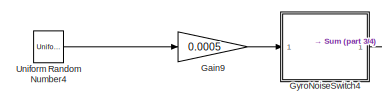
[diagram: SensorModel/HILSensorMavModel1 - part 1/4, top left region]
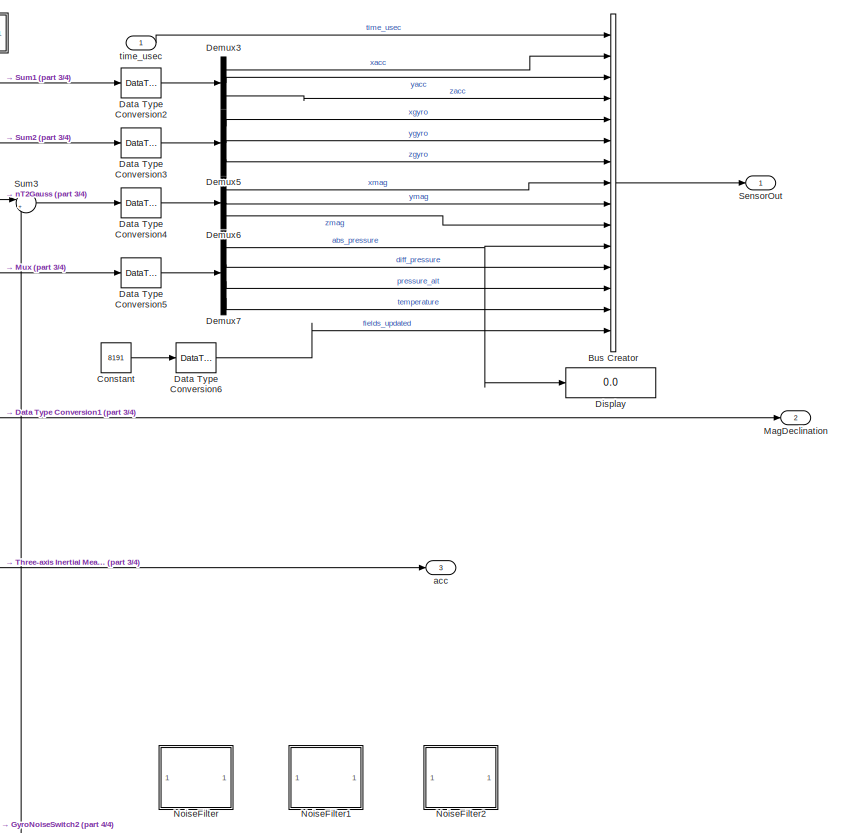
[diagram: SensorModel/HILSensorMavModel1 - part 2/4, middle right region]
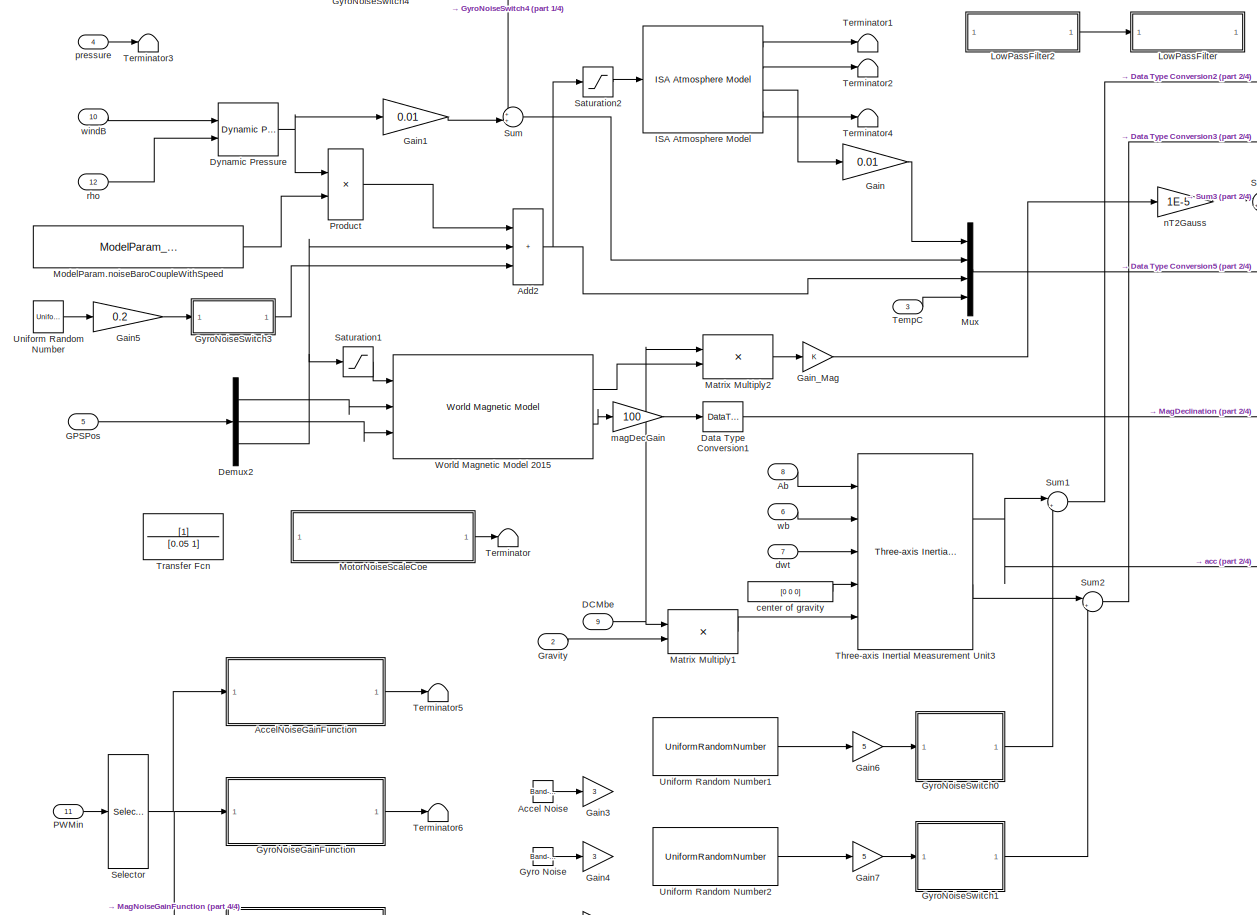
[diagram: SensorModel/HILSensorMavModel1 - part 3/4, left side, full height]
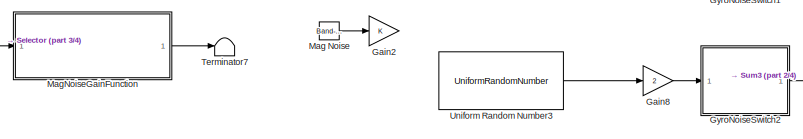
[diagram: SensorModel/HILSensorMavModel1 - part 4/4, bottom left region]
BLOCK [SubSystem] SensorModel/HILSensorMavModel1
  Ports = [12, 3]
  RequestExecContextInheritance = off
BLOCK [Inport] SensorModel/HILSensorMavModel1/Ab
  NameLocation = top
  Port = 8
BLOCK [Reference] SensorModel/HILSensorMavModel1/Accel Noise  REF=simulink/Sources/Band-Limited
White Noise
  Commented = on
  Ports = [0, 1]
  SourceBlock = simulink/Sources/Band-Limited\nWhite Noise
  SourceProductBaseCode = SL
  SourceType = Band-Limited White Noise.
BLOCK [SubSystem] SensorModel/HILSensorMavModel1/AccelNoiseGainFunction
  ErrorFcn = Stateflow.Translate.translate
  PermitHierarchicalResolution = ExplicitOnly
  Ports = [1, 1]
  RequestExecContextInheritance = off
  SFBlockType = MATLAB Function
  TreatAsAtomicUnit = on
BLOCK [Demux] SensorModel/HILSensorMavModel1/AccelNoiseGainFunction/ Demux 
  Outputs = 1
  Ports = [1, 1]
BLOCK [S-Function] SensorModel/HILSensorMavModel1/AccelNoiseGainFunction/ SFunction 
  EnableBusSupport = on
  FunctionName = sf_sfun
  Parameters = ModelParam_noisePowerOffGainAccel,ModelParam_noisePowerOffGainAccelZ,ModelParam_noisePowerOnGainAccel,ModelParam_noisePowerOnGainAccelZ
  PortCounts = [1 2]
  Ports = [1, 2]
  SFcnIsStateOwnerBlock = off
  SFunctionDeploymentMode = off
  Tag = Stateflow S-Function 10
BLOCK [Terminator] SensorModel/HILSensorMavModel1/AccelNoiseGainFunction/ Terminator 
BLOCK [Outport] SensorModel/HILSensorMavModel1/AccelNoiseGainFunction/Gain
  VectorParamsAs1DForOutWhenUnconnected = off
BLOCK [Inport] SensorModel/HILSensorMavModel1/AccelNoiseGainFunction/theta
BLOCK [Sum] SensorModel/HILSensorMavModel1/Add2
  IconShape = rectangular
  Inputs = +++
  Ports = [3, 1]
BLOCK [BusCreator] SensorModel/HILSensorMavModel1/Bus Creator
  DisplayOption = bar
  InheritFromInputs = on
  Inputs = 15
  NonVirtualBus = on
  OutDataTypeStr = Bus: MavLinkSensor
  Ports = [15, 1]
BLOCK [Constant] SensorModel/HILSensorMavModel1/Constant
  Value = 8191
BLOCK [Inport] SensorModel/HILSensorMavModel1/DCMbe
  NameLocation = top
  Port = 9
BLOCK [DataTypeConversion] SensorModel/HILSensorMavModel1/Data Type Conversion1
  OutDataTypeStr = int16
  RndMeth = Floor
  SaturateOnIntegerOverflow = off
BLOCK [DataTypeConversion] SensorModel/HILSensorMavModel1/Data Type Conversion2
  OutDataTypeStr = single
  RndMeth = Floor
  SaturateOnIntegerOverflow = off
BLOCK [DataTypeConversion] SensorModel/HILSensorMavModel1/Data Type Conversion3
  OutDataTypeStr = single
  RndMeth = Floor
  SaturateOnIntegerOverflow = off
BLOCK [DataTypeConversion] SensorModel/HILSensorMavModel1/Data Type Conversion4
  OutDataTypeStr = single
  RndMeth = Floor
  SaturateOnIntegerOverflow = off
BLOCK [DataTypeConversion] SensorModel/HILSensorMavModel1/Data Type Conversion5
  OutDataTypeStr = single
  RndMeth = Floor
  SaturateOnIntegerOverflow = off
BLOCK [DataTypeConversion] SensorModel/HILSensorMavModel1/Data Type Conversion6
  OutDataTypeStr = uint32
  RndMeth = Floor
  SaturateOnIntegerOverflow = off
BLOCK [Demux] SensorModel/HILSensorMavModel1/Demux2
  Outputs = 3
  Ports = [1, 3]
BLOCK [Demux] SensorModel/HILSensorMavModel1/Demux3
  Outputs = 3
  Ports = [1, 3]
BLOCK [Demux] SensorModel/HILSensorMavModel1/Demux5
  Outputs = 3
  Ports = [1, 3]
BLOCK [Demux] SensorModel/HILSensorMavModel1/Demux6
  Outputs = 3
  Ports = [1, 3]
BLOCK [Demux] SensorModel/HILSensorMavModel1/Demux7
  Ports = [1, 4]
BLOCK [Display] SensorModel/HILSensorMavModel1/Display
  Decimation = 1
  Ports = [1]
BLOCK [Reference] SensorModel/HILSensorMavModel1/Dynamic Pressure  REF=aerolibasang/Dynamic Pressure
  Ports = [2, 1]
  SourceBlock = aerolibasang/Dynamic Pressure
  SourceProductBaseCode = AE
  SourceType = Dynamic Pressure
BLOCK [Inport] SensorModel/HILSensorMavModel1/GPSPos
  Port = 5
BLOCK [Gain] SensorModel/HILSensorMavModel1/Gain
  Gain = 0.01
BLOCK [Gain] SensorModel/HILSensorMavModel1/Gain1
  Gain = 0.01
BLOCK [Gain] SensorModel/HILSensorMavModel1/Gain2
  Commented = on
BLOCK [Gain] SensorModel/HILSensorMavModel1/Gain3
  Commented = on
  Gain = 3
BLOCK [Gain] SensorModel/HILSensorMavModel1/Gain4
  Commented = on
  Gain = 3
BLOCK [Gain] SensorModel/HILSensorMavModel1/Gain5
  Gain = 0.2
BLOCK [Gain] SensorModel/HILSensorMavModel1/Gain6
  Gain = 5
BLOCK [Gain] SensorModel/HILSensorMavModel1/Gain7
  Gain = 5
BLOCK [Gain] SensorModel/HILSensorMavModel1/Gain8
  Gain = 2
BLOCK [Gain] SensorModel/HILSensorMavModel1/Gain9
  Gain = 0.0005
BLOCK [Gain] SensorModel/HILSensorMavModel1/Gain_Mag
BLOCK [Inport] SensorModel/HILSensorMavModel1/Gravity
  NameLocation = top
  Port = 2
BLOCK [Reference] SensorModel/HILSensorMavModel1/Gyro Noise  REF=simulink/Sources/Band-Limited
White Noise
  Commented = on
  Ports = [0, 1]
  SourceBlock = simulink/Sources/Band-Limited\nWhite Noise
  SourceProductBaseCode = SL
  SourceType = Band-Limited White Noise.
BLOCK [SubSystem] SensorModel/HILSensorMavModel1/GyroNoiseGainFunction
  ErrorFcn = Stateflow.Translate.translate
  PermitHierarchicalResolution = ExplicitOnly
  Ports = [1, 1]
  RequestExecContextInheritance = off
  SFBlockType = MATLAB Function
  TreatAsAtomicUnit = on
BLOCK [Demux] SensorModel/HILSensorMavModel1/GyroNoiseGainFunction/ Demux 
  Outputs = 1
  Ports = [1, 1]
BLOCK [S-Function] SensorModel/HILSensorMavModel1/GyroNoiseGainFunction/ SFunction 
  EnableBusSupport = on
  FunctionName = sf_sfun
  Parameters = ModelParam_noisePowerOffGainGyro,ModelParam_noisePowerOffGainGyroZ,ModelParam_noisePowerOnGainGyro,ModelParam_noisePowerOnGainGyroZ
  PortCounts = [1 2]
  Ports = [1, 2]
  SFcnIsStateOwnerBlock = off
  SFunctionDeploymentMode = off
  Tag = Stateflow S-Function 11
BLOCK [Terminator] SensorModel/HILSensorMavModel1/GyroNoiseGainFunction/ Terminator 
BLOCK [Outport] SensorModel/HILSensorMavModel1/GyroNoiseGainFunction/Gain
  VectorParamsAs1DForOutWhenUnconnected = off
BLOCK [Inport] SensorModel/HILSensorMavModel1/GyroNoiseGainFunction/theta
BLOCK [SubSystem] SensorModel/HILSensorMavModel1/GyroNoiseSwitch0
  Ports = [1, 1]
  RequestExecContextInheritance = off
BLOCK [Constant] SensorModel/HILSensorMavModel1/GyroNoiseSwitch0/Constant1
  Value = ModelParam_GlobalNoiseGainSwitch
BLOCK [Constant] SensorModel/HILSensorMavModel1/GyroNoiseSwitch0/Constant2
  Value = 0.2
BLOCK [Gain] SensorModel/HILSensorMavModel1/GyroNoiseSwitch0/Gain2
  Gain = 0.8
BLOCK [Inport] SensorModel/HILSensorMavModel1/GyroNoiseSwitch0/In1
BLOCK [Outport] SensorModel/HILSensorMavModel1/GyroNoiseSwitch0/Out1
  VectorParamsAs1DForOutWhenUnconnected = off
BLOCK [Product] SensorModel/HILSensorMavModel1/GyroNoiseSwitch0/Product4
  Ports = [2, 1]
BLOCK [Sum] SensorModel/HILSensorMavModel1/GyroNoiseSwitch0/Sum
  Inputs = |++
  Ports = [2, 1]
BLOCK [SubSystem] SensorModel/HILSensorMavModel1/GyroNoiseSwitch1
  Ports = [1, 1]
  RequestExecContextInheritance = off
BLOCK [Constant] SensorModel/HILSensorMavModel1/GyroNoiseSwitch1/Constant1
  Value = ModelParam_GlobalNoiseGainSwitch
BLOCK [Constant] SensorModel/HILSensorMavModel1/GyroNoiseSwitch1/Constant2
  Value = 0.2
BLOCK [Gain] SensorModel/HILSensorMavModel1/GyroNoiseSwitch1/Gain2
  Gain = 0.8
BLOCK [Inport] SensorModel/HILSensorMavModel1/GyroNoiseSwitch1/In1
BLOCK [Outport] SensorModel/HILSensorMavModel1/GyroNoiseSwitch1/Out1
  VectorParamsAs1DForOutWhenUnconnected = off
BLOCK [Product] SensorModel/HILSensorMavModel1/GyroNoiseSwitch1/Product4
  Ports = [2, 1]
BLOCK [Sum] SensorModel/HILSensorMavModel1/GyroNoiseSwitch1/Sum
  Inputs = |++
  Ports = [2, 1]
BLOCK [SubSystem] SensorModel/HILSensorMavModel1/GyroNoiseSwitch2
  Ports = [1, 1]
  RequestExecContextInheritance = off
BLOCK [Constant] SensorModel/HILSensorMavModel1/GyroNoiseSwitch2/Constant1
  Value = ModelParam_GlobalNoiseGainSwitch
BLOCK [Constant] SensorModel/HILSensorMavModel1/GyroNoiseSwitch2/Constant2
  Value = 0.2
BLOCK [Gain] SensorModel/HILSensorMavModel1/GyroNoiseSwitch2/Gain2
  Gain = 0.8
BLOCK [Inport] SensorModel/HILSensorMavModel1/GyroNoiseSwitch2/In1
BLOCK [Outport] SensorModel/HILSensorMavModel1/GyroNoiseSwitch2/Out1
  VectorParamsAs1DForOutWhenUnconnected = off
BLOCK [Product] SensorModel/HILSensorMavModel1/GyroNoiseSwitch2/Product4
  Ports = [2, 1]
BLOCK [Sum] SensorModel/HILSensorMavModel1/GyroNoiseSwitch2/Sum
  Inputs = |++
  Ports = [2, 1]
BLOCK [SubSystem] SensorModel/HILSensorMavModel1/GyroNoiseSwitch3
  Ports = [1, 1]
  RequestExecContextInheritance = off
BLOCK [Constant] SensorModel/HILSensorMavModel1/GyroNoiseSwitch3/Constant1
  Value = ModelParam_GlobalNoiseGainSwitch
BLOCK [Constant] SensorModel/HILSensorMavModel1/GyroNoiseSwitch3/Constant2
  Value = 0.3
BLOCK [Gain] SensorModel/HILSensorMavModel1/GyroNoiseSwitch3/Gain2
  Gain = 0.7
BLOCK [Inport] SensorModel/HILSensorMavModel1/GyroNoiseSwitch3/In1
BLOCK [Outport] SensorModel/HILSensorMavModel1/GyroNoiseSwitch3/Out1
  VectorParamsAs1DForOutWhenUnconnected = off
BLOCK [Product] SensorModel/HILSensorMavModel1/GyroNoiseSwitch3/Product4
  Ports = [2, 1]
BLOCK [Sum] SensorModel/HILSensorMavModel1/GyroNoiseSwitch3/Sum
  Inputs = |++
  Ports = [2, 1]
BLOCK [SubSystem] SensorModel/HILSensorMavModel1/GyroNoiseSwitch4
  Ports = [1, 1]
  RequestExecContextInheritance = off
BLOCK [Constant] SensorModel/HILSensorMavModel1/GyroNoiseSwitch4/Constant1
  Value = ModelParam_GlobalNoiseGainSwitch
BLOCK [Constant] SensorModel/HILSensorMavModel1/GyroNoiseSwitch4/Constant2
  Value = 0.3
BLOCK [Gain] SensorModel/HILSensorMavModel1/GyroNoiseSwitch4/Gain2
  Gain = 0.7
BLOCK [Inport] SensorModel/HILSensorMavModel1/GyroNoiseSwitch4/In1
BLOCK [Outport] SensorModel/HILSensorMavModel1/GyroNoiseSwitch4/Out1
  VectorParamsAs1DForOutWhenUnconnected = off
BLOCK [Product] SensorModel/HILSensorMavModel1/GyroNoiseSwitch4/Product4
  Ports = [2, 1]
BLOCK [Sum] SensorModel/HILSensorMavModel1/GyroNoiseSwitch4/Sum
  Inputs = |++
  Ports = [2, 1]
BLOCK [Reference] SensorModel/HILSensorMavModel1/ISA Atmosphere Model  REF=aerolibatmos2/ISA Atmosphere Model
  Ports = [1, 4]
  SourceBlock = aerolibatmos2/ISA Atmosphere Model
  SourceProductBaseCode = AE
  SourceType = International Standard Atmosphere Model
BLOCK [SubSystem] SensorModel/HILSensorMavModel1/LowPassFilter
  Commented = on
  Ports = [1, 1]
  RequestExecContextInheritance = off
BLOCK [Demux] SensorModel/HILSensorMavModel1/LowPassFilter/Demux1
  Outputs = 3
  Ports = [1, 3]
BLOCK [Mux] SensorModel/HILSensorMavModel1/LowPassFilter/Mux1
  DisplayOption = bar
  Inputs = 3
  Ports = [3, 1]
BLOCK [Inport] SensorModel/HILSensorMavModel1/LowPassFilter/gyroDataIn
BLOCK [Outport] SensorModel/HILSensorMavModel1/LowPassFilter/gyroDataOut
  VectorParamsAs1DForOutWhenUnconnected = off
BLOCK [TransferFcn] SensorModel/HILSensorMavModel1/LowPassFilter/x
  Denominator = [ModelParam_noiseLowPassFilterCoeGyro 1]
BLOCK [TransferFcn] SensorModel/HILSensorMavModel1/LowPassFilter/y
  Denominator = [ModelParam_noiseLowPassFilterCoeGyro 1]
BLOCK [TransferFcn] SensorModel/HILSensorMavModel1/LowPassFilter/z
  Denominator = [ModelParam_noiseLowPassFilterCoeGyro 1]
BLOCK [SubSystem] SensorModel/HILSensorMavModel1/LowPassFilter2
  Commented = on
  Ports = [1, 1]
  RequestExecContextInheritance = off
BLOCK [Demux] SensorModel/HILSensorMavModel1/LowPassFilter2/Demux1
  Outputs = 3
  Ports = [1, 3]
BLOCK [Mux] SensorModel/HILSensorMavModel1/LowPassFilter2/Mux1
  DisplayOption = bar
  Inputs = 3
  Ports = [3, 1]
BLOCK [Inport] SensorModel/HILSensorMavModel1/LowPassFilter2/accelDataIn
BLOCK [Outport] SensorModel/HILSensorMavModel1/LowPassFilter2/accelDataOut
  VectorParamsAs1DForOutWhenUnconnected = off
BLOCK [TransferFcn] SensorModel/HILSensorMavModel1/LowPassFilter2/x
  Denominator = [ModelParam_noiseLowPassFilterCoeAccel 1]
BLOCK [TransferFcn] SensorModel/HILSensorMavModel1/LowPassFilter2/y
  Denominator = [ModelParam_noiseLowPassFilterCoeAccel 1]
BLOCK [TransferFcn] SensorModel/HILSensorMavModel1/LowPassFilter2/z
  Denominator = [ModelParam_noiseLowPassFilterCoeAccel 1]
BLOCK [Reference] SensorModel/HILSensorMavModel1/Mag Noise  REF=simulink/Sources/Band-Limited
White Noise
  Commented = on
  Ports = [0, 1]
  SourceBlock = simulink/Sources/Band-Limited\nWhite Noise
  SourceProductBaseCode = SL
  SourceType = Band-Limited White Noise.
BLOCK [Outport] SensorModel/HILSensorMavModel1/MagDeclination
  Port = 2
  VectorParamsAs1DForOutWhenUnconnected = off
BLOCK [SubSystem] SensorModel/HILSensorMavModel1/MagNoiseGainFunction
  ErrorFcn = Stateflow.Translate.translate
  PermitHierarchicalResolution = ExplicitOnly
  Ports = [1, 1]
  RequestExecContextInheritance = off
  SFBlockType = MATLAB Function
  TreatAsAtomicUnit = on
BLOCK [Demux] SensorModel/HILSensorMavModel1/MagNoiseGainFunction/ Demux 
  Outputs = 1
  Ports = [1, 1]
BLOCK [S-Function] SensorModel/HILSensorMavModel1/MagNoiseGainFunction/ SFunction 
  EnableBusSupport = on
  FunctionName = sf_sfun
  Parameters = ModelParam_noisePowerOffGainMag,ModelParam_noisePowerOffGainMagZ,ModelParam_noisePowerOnGainMag,ModelParam_noisePowerOnGainMagZ
  PortCounts = [1 2]
  Ports = [1, 2]
  SFcnIsStateOwnerBlock = off
  SFunctionDeploymentMode = off
  Tag = Stateflow S-Function 12
BLOCK [Terminator] SensorModel/HILSensorMavModel1/MagNoiseGainFunction/ Terminator 
BLOCK [Outport] SensorModel/HILSensorMavModel1/MagNoiseGainFunction/Gain
  VectorParamsAs1DForOutWhenUnconnected = off
BLOCK [Inport] SensorModel/HILSensorMavModel1/MagNoiseGainFunction/theta
BLOCK [Product] SensorModel/HILSensorMavModel1/Matrix Multiply1
  Multiplication = Matrix(*)
  NameLocation = top
  Ports = [2, 1]
BLOCK [Product] SensorModel/HILSensorMavModel1/Matrix Multiply2
  Multiplication = Matrix(*)
  NameLocation = top
  Ports = [2, 1]
BLOCK [Constant] SensorModel/HILSensorMavModel1/ModelParam.noiseBaroCoupleWithSpeed
  Value = ModelParam_noiseBaroCoupleWithSpeed
BLOCK [SubSystem] SensorModel/HILSensorMavModel1/MotorNoiseScaleCoe
  Commented = on
  ErrorFcn = Stateflow.Translate.translate
  PermitHierarchicalResolution = ExplicitOnly
  Ports = [1, 1]
  RequestExecContextInheritance = off
  SFBlockType = MATLAB Function
  TreatAsAtomicUnit = on
BLOCK [Demux] SensorModel/HILSensorMavModel1/MotorNoiseScaleCoe/ Demux 
  Outputs = 1
  Ports = [1, 1]
BLOCK [S-Function] SensorModel/HILSensorMavModel1/MotorNoiseScaleCoe/ SFunction 
  EnableBusSupport = on
  FunctionName = sf_sfun
  PortCounts = [1 2]
  Ports = [1, 2]
  SFcnIsStateOwnerBlock = off
  SFunctionDeploymentMode = off
  Tag = Stateflow S-Function 13
BLOCK [Terminator] SensorModel/HILSensorMavModel1/MotorNoiseScaleCoe/ Terminator 
BLOCK [Outport] SensorModel/HILSensorMavModel1/MotorNoiseScaleCoe/NoiseScaleCoe
  VectorParamsAs1DForOutWhenUnconnected = off
BLOCK [Inport] SensorModel/HILSensorMavModel1/MotorNoiseScaleCoe/PWMin
BLOCK [Mux] SensorModel/HILSensorMavModel1/Mux
  DisplayOption = bar
  Ports = [4, 1]
BLOCK [SubSystem] SensorModel/HILSensorMavModel1/NoiseFilter
  Commented = on
  Ports = [1, 1]
  RequestExecContextInheritance = off
BLOCK [Demux] SensorModel/HILSensorMavModel1/NoiseFilter/Demux
  Outputs = 3
  Ports = [1, 3]
BLOCK [Inport] SensorModel/HILSensorMavModel1/NoiseFilter/In1
BLOCK [Mux] SensorModel/HILSensorMavModel1/NoiseFilter/Mux1
  DisplayOption = bar
  Inputs = 3
  Ports = [3, 1]
BLOCK [Outport] SensorModel/HILSensorMavModel1/NoiseFilter/Out1
  VectorParamsAs1DForOutWhenUnconnected = off
BLOCK [TransferFcn] SensorModel/HILSensorMavModel1/NoiseFilter/Transfer Fcn4
  Denominator = [0.04 1]
BLOCK [TransferFcn] SensorModel/HILSensorMavModel1/NoiseFilter/Transfer Fcn5
  Denominator = [0.04 1]
BLOCK [TransferFcn] SensorModel/HILSensorMavModel1/NoiseFilter/Transfer Fcn6
  Denominator = [0.04 1]
BLOCK [SubSystem] SensorModel/HILSensorMavModel1/NoiseFilter1
  Commented = on
  Ports = [1, 1]
  RequestExecContextInheritance = off
BLOCK [Demux] SensorModel/HILSensorMavModel1/NoiseFilter1/Demux
  Outputs = 3
  Ports = [1, 3]
BLOCK [Inport] SensorModel/HILSensorMavModel1/NoiseFilter1/In1
BLOCK [Mux] SensorModel/HILSensorMavModel1/NoiseFilter1/Mux1
  DisplayOption = bar
  Inputs = 3
  Ports = [3, 1]
BLOCK [Outport] SensorModel/HILSensorMavModel1/NoiseFilter1/Out1
  VectorParamsAs1DForOutWhenUnconnected = off
BLOCK [TransferFcn] SensorModel/HILSensorMavModel1/NoiseFilter1/Transfer Fcn4
  Denominator = [0.04 1]
BLOCK [TransferFcn] SensorModel/HILSensorMavModel1/NoiseFilter1/Transfer Fcn5
  Denominator = [0.04 1]
BLOCK [TransferFcn] SensorModel/HILSensorMavModel1/NoiseFilter1/Transfer Fcn6
  Denominator = [0.04 1]
BLOCK [SubSystem] SensorModel/HILSensorMavModel1/NoiseFilter2
  Commented = on
  Ports = [1, 1]
  RequestExecContextInheritance = off
BLOCK [Demux] SensorModel/HILSensorMavModel1/NoiseFilter2/Demux
  Outputs = 3
  Ports = [1, 3]
BLOCK [Inport] SensorModel/HILSensorMavModel1/NoiseFilter2/In1
BLOCK [Mux] SensorModel/HILSensorMavModel1/NoiseFilter2/Mux1
  DisplayOption = bar
  Inputs = 3
  Ports = [3, 1]
BLOCK [Outport] SensorModel/HILSensorMavModel1/NoiseFilter2/Out1
  VectorParamsAs1DForOutWhenUnconnected = off
BLOCK [TransferFcn] SensorModel/HILSensorMavModel1/NoiseFilter2/Transfer Fcn4
  Denominator = [0.05 1]
BLOCK [TransferFcn] SensorModel/HILSensorMavModel1/NoiseFilter2/Transfer Fcn5
  Denominator = [0.05 1]
BLOCK [TransferFcn] SensorModel/HILSensorMavModel1/NoiseFilter2/Transfer Fcn6
  Denominator = [0.05 1]
BLOCK [Inport] SensorModel/HILSensorMavModel1/PWMin
  Port = 11
BLOCK [Product] SensorModel/HILSensorMavModel1/Product
  Ports = [2, 1]
BLOCK [Saturate] SensorModel/HILSensorMavModel1/Saturation1
  LowerLimit = 0
  UpperLimit = 100000
BLOCK [Saturate] SensorModel/HILSensorMavModel1/Saturation2
  LowerLimit = 0
  UpperLimit = 100000
BLOCK [Selector] SensorModel/HILSensorMavModel1/Selector
  IndexOptions = Index vector (dialog)
  Indices = [1]
  InputPortWidth = 8
  OutputSizes = 1
  Ports = [1, 1]
BLOCK [Outport] SensorModel/HILSensorMavModel1/SensorOut
  VectorParamsAs1DForOutWhenUnconnected = off
BLOCK [Sum] SensorModel/HILSensorMavModel1/Sum
  Inputs = ++|
  Ports = [2, 1]
BLOCK [Sum] SensorModel/HILSensorMavModel1/Sum1
  Inputs = |++
  Ports = [2, 1]
BLOCK [Sum] SensorModel/HILSensorMavModel1/Sum2
  Inputs = |++
  Ports = [2, 1]
BLOCK [Sum] SensorModel/HILSensorMavModel1/Sum3
  Inputs = |++
  Ports = [2, 1]
BLOCK [Inport] SensorModel/HILSensorMavModel1/TempC
  NameLocation = top
  Port = 3
BLOCK [Terminator] SensorModel/HILSensorMavModel1/Terminator
  Commented = on
BLOCK [Terminator] SensorModel/HILSensorMavModel1/Terminator1
  Commented = on
BLOCK [Terminator] SensorModel/HILSensorMavModel1/Terminator2
  Commented = on
BLOCK [Terminator] SensorModel/HILSensorMavModel1/Terminator3
BLOCK [Terminator] SensorModel/HILSensorMavModel1/Terminator4
  Commented = on
BLOCK [Terminator] SensorModel/HILSensorMavModel1/Terminator5
BLOCK [Terminator] SensorModel/HILSensorMavModel1/Terminator6
BLOCK [Terminator] SensorModel/HILSensorMavModel1/Terminator7
BLOCK [Reference] SensorModel/HILSensorMavModel1/Three-axis Inertial Measurement Unit3  REF=aerolibnav/Three-axis Inertial
Measurement Unit
  Ports = [5, 2]
  SourceBlock = aerolibnav/Three-axis Inertial\nMeasurement Unit
  SourceProductBaseCode = AE
  SourceType = Three-axis Inertial Measurement Unit
BLOCK [TransferFcn] SensorModel/HILSensorMavModel1/Transfer Fcn
  Commented = on
  Denominator = [0.05 1]
BLOCK [UniformRandomNumber] SensorModel/HILSensorMavModel1/Uniform Random Number
  Maximum = 2
  Minimum = -2
  SampleTime = ModelParam_timeSampBaro
  Seed = 15634
BLOCK [UniformRandomNumber] SensorModel/HILSensorMavModel1/Uniform Random Number1
  Maximum = [0.1,0.1,0.2]
  Minimum = -[0.1,0.1,0.2]
  SampleTime = 0.004
  Seed = [12233,645554,678766]
BLOCK [UniformRandomNumber] SensorModel/HILSensorMavModel1/Uniform Random Number2
  Maximum = [0.01,0.01,0.01]
  Minimum = -[0.01,0.01,0.01]
  SampleTime = 0.004
  Seed = [3243,44556,2334343]
BLOCK [UniformRandomNumber] SensorModel/HILSensorMavModel1/Uniform Random Number3
  Maximum = [0.01,0.01,0.01]
  Minimum = -[0.01,0.01,0.01]
  SampleTime = 0.004
  Seed = [45465,454534,1234232]
BLOCK [UniformRandomNumber] SensorModel/HILSensorMavModel1/Uniform Random Number4
  SampleTime = 0.01
  Seed = 25634
BLOCK [Reference] SensorModel/HILSensorMavModel1/World Magnetic Model 2015  REF=aerolibgravity2/World Magnetic Model
  Ports = [3, 2]
  SourceBlock = aerolibgravity2/World Magnetic Model
  SourceProductBaseCode = AE
  SourceType = WorldMagneticModel
BLOCK [Outport] SensorModel/HILSensorMavModel1/acc
  Port = 3
  VectorParamsAs1DForOutWhenUnconnected = off
BLOCK [Constant] SensorModel/HILSensorMavModel1/center of gravity
  NameLocation = top
  Value = [0 0 0]
BLOCK [Inport] SensorModel/HILSensorMavModel1/dwt
  Port = 7
BLOCK [Gain] SensorModel/HILSensorMavModel1/magDecGain
  Gain = 100
BLOCK [Gain] SensorModel/HILSensorMavModel1/nT2Gauss
  Gain = 1E-5
BLOCK [Inport] SensorModel/HILSensorMavModel1/pressure
  Port = 4
BLOCK [Inport] SensorModel/HILSensorMavModel1/rho
  Port = 12
BLOCK [Inport] SensorModel/HILSensorMavModel1/time_usec
BLOCK [Inport] SensorModel/HILSensorMavModel1/wb
  NameLocation = top
  Port = 6
BLOCK [Inport] SensorModel/HILSensorMavModel1/windB
  Port = 10
BLOCK [SubSystem] SensorModel/HILStateMavModel
  Ports = [8, 1]
  RequestExecContextInheritance = off
BLOCK [Inport] SensorModel/HILStateMavModel/Accb
  Port = 8
BLOCK [Sqrt] SensorModel/HILStateMavModel/Airspeed1
  AlgorithmType = Newton-Raphson
BLOCK [Inport] SensorModel/HILStateMavModel/AngQuat
  NameLocation = top
  Port = 5
BLOCK [BusCreator] SensorModel/HILStateMavModel/Bus Creator
  DisplayOption = bar
  InheritFromInputs = on
  Inputs = 16
  NonVirtualBus = on
  OutDataTypeStr = Bus: MavLinkStateQuat
  Ports = [16, 1]
BLOCK [DataTypeConversion] SensorModel/HILStateMavModel/Data Type Conversion1
  OutDataTypeStr = int32
  RndMeth = Round
  SaturateOnIntegerOverflow = off
BLOCK [DataTypeConversion] SensorModel/HILStateMavModel/Data Type Conversion2
  OutDataTypeStr = single
  RndMeth = Floor
  SaturateOnIntegerOverflow = off
BLOCK [DataTypeConversion] SensorModel/HILStateMavModel/Data Type Conversion3
  OutDataTypeStr = single
  RndMeth = Floor
  SaturateOnIntegerOverflow = off
BLOCK [DataTypeConversion] SensorModel/HILStateMavModel/Data Type Conversion4
  OutDataTypeStr = int32
  RndMeth = Round
  SaturateOnIntegerOverflow = off
BLOCK [DataTypeConversion] SensorModel/HILStateMavModel/Data Type Conversion5
  OutDataTypeStr = int32
  RndMeth = Round
  SaturateOnIntegerOverflow = off
BLOCK [DataTypeConversion] SensorModel/HILStateMavModel/Data Type Conversion7
  OutDataTypeStr = int16
  RndMeth = Round
  SaturateOnIntegerOverflow = off
BLOCK [DataTypeConversion] SensorModel/HILStateMavModel/Data Type Conversion8
  OutDataTypeStr = int16
  RndMeth = Round
  SaturateOnIntegerOverflow = off
BLOCK [DataTypeConversion] SensorModel/HILStateMavModel/Data Type Conversion9
  OutDataTypeStr = uint16
  RndMeth = Round
  SaturateOnIntegerOverflow = off
BLOCK [Demux] SensorModel/HILStateMavModel/Demux
  Outputs = 3
  Ports = [1, 3]
BLOCK [Demux] SensorModel/HILStateMavModel/Demux1
  Outputs = 3
  Ports = [1, 3]
BLOCK [Demux] SensorModel/HILStateMavModel/Demux2
  Outputs = 3
  Ports = [1, 3]
BLOCK [Demux] SensorModel/HILStateMavModel/Demux3
  Outputs = 3
  Ports = [1, 3]
BLOCK [Demux] SensorModel/HILStateMavModel/Demux4
  Outputs = 2
  Ports = [1, 2]
BLOCK [Reference] SensorModel/HILStateMavModel/Dynamic Pressure  REF=aerolibasang/Dynamic Pressure
  Ports = [2, 1]
  SourceBlock = aerolibasang/Dynamic Pressure
  SourceProductBaseCode = AE
  SourceType = Dynamic Pressure
BLOCK [Gain] SensorModel/HILStateMavModel/Gain
  Gain = 1E7
BLOCK [Gain] SensorModel/HILStateMavModel/Gain1
  Gain = 1E7
BLOCK [Gain] SensorModel/HILStateMavModel/Gain2
  Gain = 2/1.225
BLOCK [Gain] SensorModel/HILStateMavModel/Gain3
  Gain = 1E3
BLOCK [Gain] SensorModel/HILStateMavModel/Gain4
  Gain = 100
BLOCK [Gain] SensorModel/HILStateMavModel/Gain5
  Gain = 1000.0/9.80665
BLOCK [Gain] SensorModel/HILStateMavModel/Gain7
  Gain = 100
BLOCK [Mux] SensorModel/HILStateMavModel/Mux1
  DisplayOption = bar
  Inputs = 2
  Ports = [2, 1]
BLOCK [Inport] SensorModel/HILStateMavModel/PosGPS
  NameLocation = top
  Port = 7
BLOCK [Sqrt] SensorModel/HILStateMavModel/Sqrt1
BLOCK [Inport] SensorModel/HILStateMavModel/Vb
  NameLocation = top
  Port = 3
BLOCK [Inport] SensorModel/HILStateMavModel/Ve
  NameLocation = top
  Port = 4
BLOCK [Reference] SensorModel/HILStateMavModel/dot1  REF=aerolibasang/Incidence, Sideslip,
& Airspeed/dot
  Ports = [1, 1]
  SourceBlock = aerolibasang/Incidence, Sideslip,\n& Airspeed/dot
  SourceProductBaseCode = AE
  SourceType = SubSystem
BLOCK [Inport] SensorModel/HILStateMavModel/pho
  Port = 2
BLOCK [Outport] SensorModel/HILStateMavModel/stateOut
  VectorParamsAs1DForOutWhenUnconnected = off
BLOCK [Inport] SensorModel/HILStateMavModel/time_usec
BLOCK [Inport] SensorModel/HILStateMavModel/wb
  Port = 6
BLOCK [Terminator] SensorModel/MagDec
BLOCK [Terminator] SensorModel/MavHILStateQuat
BLOCK [Outport] SensorModel/MavLinkGPSData
  Port = 2
  VectorParamsAs1DForOutWhenUnconnected = off
BLOCK [Outport] SensorModel/MavLinkSensorData
  VectorParamsAs1DForOutWhenUnconnected = off
BLOCK [Constant] SensorModel/ModelParam.uavMass
  Value = ModelParam_uavMass
BLOCK [Inport] SensorModel/MotorRads
  Port = 15
BLOCK [Inport] SensorModel/PWM
  Port = 17
BLOCK [Terminator] SensorModel/SysTime
BLOCK [Inport] SensorModel/TerrainZ
BLOCK [Constant] SensorModel/UAVType
  Value = ModelParam_uavType
BLOCK [Outport] SensorModel/Vehile3DInfo
  Port = 3
  VectorParamsAs1DForOutWhenUnconnected = off
BLOCK [SubSystem] SensorModel/ZLimit
  ErrorFcn = Stateflow.Translate.translate
  PermitHierarchicalResolution = ExplicitOnly
  Ports = [2, 1]
  RequestExecContextInheritance = off
  SFBlockType = MATLAB Function
  TreatAsAtomicUnit = on
BLOCK [Demux] SensorModel/ZLimit/ Demux 
  Outputs = 1
  Ports = [1, 1]
BLOCK [S-Function] SensorModel/ZLimit/ SFunction 
  EnableBusSupport = on
  FunctionName = sf_sfun
  PortCounts = [2 2]
  Ports = [2, 2]
  SFcnIsStateOwnerBlock = off
  SFunctionDeploymentMode = off
  Tag = Stateflow S-Function 17
BLOCK [Terminator] SensorModel/ZLimit/ Terminator 
BLOCK [Outport] SensorModel/ZLimit/Xee
  VectorParamsAs1DForOutWhenUnconnected = off
BLOCK [Inport] SensorModel/ZLimit/xe
  Port = 2
BLOCK [Inport] SensorModel/ZLimit/zt
BLOCK [Inport] TerrainZ
  Port = 2
BLOCK [Inport] inPWMs
  PortDimensions = 16
ANNOTATION (root): Note There are three parameters essential for DLL model generation. They are "ModelInit_Inputs" (8D vector for input pwm signal initialization) in the "Motor Model" module, "ModelInit_PosE" (3D vector for position initialization) and "ModelInit_AngEuler" (3D vector for attitude initialization) in the "6DOF" module
ANNOTATION (root): struct MavHILSensor { uint64_t time_usec; /*< Timestamp (microseconds, synced to UNIX time or since system boot)*/ float xacc; /*< X acceleration (m/s^2)*/ float yacc; /*< Y acceleration (m/s^2)*/ float zacc; /*< Z acceleration (m/s^2)*/ float xgyro; /*< Angular speed around X axis in body frame (rad / sec)*/ float ygyro; /*< Angular speed around Y axis in body frame (rad / sec)*/ float zgyro; /*<...<+633ch>
ANNOTATION (root): struct MavHILGPS{ uint64_t time_usec; /*< Timestamp (microseconds since UNIX epoch or microseconds since system boot)*/ int32_t lat; /*< Latitude (WGS84), in degrees * 1E7*/ int32_t lon; /*< Longitude (WGS84), in degrees * 1E7*/ int32_t alt; /*< Altitude (AMSL, not WGS84), in meters * 1000 (positive for up)*/ uint16_t eph; /*< GPS HDOP horizontal dilution of position in cm (m*100). If unknown, set...<+846ch>
ANNOTATION (root): Current ground height at this location (1-dimensional float value, get positive value when downwards ground) . This input is to tell the vehicle to stay at the surface of the ground.
ANNOTATION (root): PWM inputs from autopilot (16-dimensional float vector, range from 0-1)
ANNOTATION (root): select the 1:8 inputs
ANNOTATION (root): struct MavVehileStateInfo { int copterID ; //Vehicle ID int vehicleType ; //Vehicle type double runnedTime ; //Current Time stamp (s) float VelE [ 3 ]; //NED vehicle velocity in earth frame (m/s) float PosE [ 3 ]; //NED vehicle position in earth frame (m) float AngEuler [ 3 ]; //Vehicle Euler angle roll pitch yaw (rad) in x y z float AngQuatern [ 4 ]; //Vehicle attitude in Quaternion float MotorRP...<+262ch>
ANNOTATION Multicopter_Kinetics&Dynamics/Model_set: 地面效应模型
ANNOTATION Multicopter_Kinetics&Dynamics/Model_set: 六自由度无人机的动力学模型
ANNOTATION Multicopter_Kinetics&Dynamics/Model_set: 动力模型
ANNOTATION Multicopter_Kinetics&Dynamics/Model_set: 阻力模型
ANNOTATION Multicopter_Kinetics&Dynamics/Properller Linear-Static Dynamics: 关于螺旋桨模型 ① 此处的螺旋桨模型采用的是电机PWM输入到拉力、反扭力矩输出的静态模型，而非通过螺旋桨理论推导的一般形式模型。 ② 拉力模型为实飞数据辨识所得。反扭力矩、转速模型为动力测试台测量所得。 ③ T单位为N，Q单位为N.m，radW单位为rad/s。
ANNOTATION Multicopter_Kinetics&Dynamics/Properller Linear-Static Dynamics: 螺旋桨的静态转速模型
ANNOTATION Multicopter_Kinetics&Dynamics/Properller Linear-Static Dynamics: 螺旋桨静态反扭力矩模型
ANNOTATION Multicopter_Kinetics&Dynamics/Properller Linear-Static Dynamics: 螺旋桨静态拉力模型
ANNOTATION SensorModel: Struct MavHILStateQuat{ uint64_t time_usec; /*< Timestamp (microseconds since UNIX epoch or microseconds since system boot)*/ float attitude_quaternion [ 4 ]; /*< Vehicle attitude expressed as normalized quaternion in w, x, y, z order (with 1 0 0 0 being the null-rotation)*/ float rollspeed; /*< Body frame roll / phi angular speed (rad/s)*/ float pitchspeed; /*< Body frame pitch / theta angular sp...<+691ch>
ANNOTATION SensorModel/HILGPSModel: 水平速度
ANNOTATION SensorModel/HILGPSModel: 运动方位
LINE Multicopter_Kinetics&Dynamics/Environment Model/6DOF Bus:1 -> Multicopter_Kinetics&Dynamics/Environment Model/Bus Selector:1
LINE Multicopter_Kinetics&Dynamics/Environment Model/Bus Creator:1 -> Multicopter_Kinetics&Dynamics/Environment Model/Environment Model Bus:1
LINE Multicopter_Kinetics&Dynamics/Environment Model/Bus Selector:1 -> Multicopter_Kinetics&Dynamics/Environment Model/Flat Earth to LLA:1
LINE Multicopter_Kinetics&Dynamics/Environment Model/Bus Selector:2 -> Multicopter_Kinetics&Dynamics/Environment Model/Product1:2
LINE Multicopter_Kinetics&Dynamics/Environment Model/Constant_[1 1 1]:1 -> Multicopter_Kinetics&Dynamics/Environment Model/Sum1:1
LINE Multicopter_Kinetics&Dynamics/Environment Model/Flat Earth to LLA:1 -> Multicopter_Kinetics&Dynamics/Environment Model/Mux:1
NET Multicopter_Kinetics&Dynamics/Environment Model/Flat Earth to LLA:2 -> Multicopter_Kinetics&Dynamics/Environment Model/Mux:2, Multicopter_Kinetics&Dynamics/Environment Model/Saturation:1
LINE Multicopter_Kinetics&Dynamics/Environment Model/ISA Atmosphere Model:1 -> Multicopter_Kinetics&Dynamics/Environment Model/Temperature Conversion:1
LINE Multicopter_Kinetics&Dynamics/Environment Model/ISA Atmosphere Model:2 -> Multicopter_Kinetics&Dynamics/Environment Model/Terminator3:1
LINE Multicopter_Kinetics&Dynamics/Environment Model/ISA Atmosphere Model:3 -> Multicopter_Kinetics&Dynamics/Environment Model/Bus Creator:4
LINE Multicopter_Kinetics&Dynamics/Environment Model/ISA Atmosphere Model:4 -> Multicopter_Kinetics&Dynamics/Environment Model/Bus Creator:5
LINE Multicopter_Kinetics&Dynamics/Environment Model/ModelParam.envAltitude:1 -> Multicopter_Kinetics&Dynamics/Environment Model/Flat Earth to LLA:2
LINE Multicopter_Kinetics&Dynamics/Environment Model/ModelParam.noiseUpperWindBodyRatio:1 -> Multicopter_Kinetics&Dynamics/Environment Model/ModelParam.noiseUpperWindBodyRatioSwitch:1
LINE Multicopter_Kinetics&Dynamics/Environment Model/ModelParam.noiseUpperWindBodyRatioSwitch:1 -> Multicopter_Kinetics&Dynamics/Environment Model/Sum1:2
NET Multicopter_Kinetics&Dynamics/Environment Model/Mux:1 -> Multicopter_Kinetics&Dynamics/Environment Model/Bus Creator:1, Multicopter_Kinetics&Dynamics/Environment Model/WGS84 Gravity Model :1
LINE Multicopter_Kinetics&Dynamics/Environment Model/Product1:1 -> Multicopter_Kinetics&Dynamics/Environment Model/Bus Creator:6
LINE Multicopter_Kinetics&Dynamics/Environment Model/Reshape:1 -> Multicopter_Kinetics&Dynamics/Environment Model/Bus Creator:2
LINE Multicopter_Kinetics&Dynamics/Environment Model/Saturation:1 -> Multicopter_Kinetics&Dynamics/Environment Model/ISA Atmosphere Model:1
LINE Multicopter_Kinetics&Dynamics/Environment Model/Sum1:1 -> Multicopter_Kinetics&Dynamics/Environment Model/Product1:1
LINE Multicopter_Kinetics&Dynamics/Environment Model/Temperature Conversion:1 -> Multicopter_Kinetics&Dynamics/Environment Model/Terminator2:1
LINE Multicopter_Kinetics&Dynamics/Environment Model/TemperatureConstant:1 -> Multicopter_Kinetics&Dynamics/Environment Model/Bus Creator:3
LINE Multicopter_Kinetics&Dynamics/Environment Model/Uniform Random Number:1 -> Multicopter_Kinetics&Dynamics/Environment Model/ModelParam.noiseUpperWindBodyRatio:1
LINE Multicopter_Kinetics&Dynamics/Environment Model/WGS84 Gravity Model :1 -> Multicopter_Kinetics&Dynamics/Environment Model/Reshape:1
NET Multicopter_Kinetics&Dynamics/Environment Model:1 -> Multicopter_Kinetics&Dynamics/Environment Model Bus:1, Multicopter_Kinetics&Dynamics/Goto3:1
LINE Multicopter_Kinetics&Dynamics/Model_set/6 DOF info1:1 -> Multicopter_Kinetics&Dynamics/Model_set/Bus Selector2:1
LINE Multicopter_Kinetics&Dynamics/Model_set/6 DOF info:1 -> Multicopter_Kinetics&Dynamics/Model_set/Bus Selector5:1
LINE Multicopter_Kinetics&Dynamics/Model_set/Add1:1 -> Multicopter_Kinetics&Dynamics/Model_set/Bus Creator:2
LINE Multicopter_Kinetics&Dynamics/Model_set/Add2:1 -> Multicopter_Kinetics&Dynamics/Model_set/Bus Creator:1
LINE Multicopter_Kinetics&Dynamics/Model_set/Add4:1 -> Multicopter_Kinetics&Dynamics/Model_set/Product:2
NET Multicopter_Kinetics&Dynamics/Model_set/Bus Creator1:1 -> Multicopter_Kinetics&Dynamics/Model_set/6 DOF Bus:1, Multicopter_Kinetics&Dynamics/Model_set/Goto2:1
NET Multicopter_Kinetics&Dynamics/Model_set/Bus Creator:1 -> Multicopter_Kinetics&Dynamics/Model_set/Bus Selector3:1, Multicopter_Kinetics&Dynamics/Model_set/Force Moment Bus:1
LINE Multicopter_Kinetics&Dynamics/Model_set/Bus Selector1:1 -> Multicopter_Kinetics&Dynamics/Model_set/Product1:2
LINE Multicopter_Kinetics&Dynamics/Model_set/Bus Selector1:2 -> Multicopter_Kinetics&Dynamics/Model_set/Resistance Force & Torque:1
LINE Multicopter_Kinetics&Dynamics/Model_set/Bus Selector2:1 -> Multicopter_Kinetics&Dynamics/Model_set/Ground Model:2
LINE Multicopter_Kinetics&Dynamics/Model_set/Bus Selector2:2 -> Multicopter_Kinetics&Dynamics/Model_set/Ground Model:3
LINE Multicopter_Kinetics&Dynamics/Model_set/Bus Selector2:3 -> Multicopter_Kinetics&Dynamics/Model_set/Ground Model:4
LINE Multicopter_Kinetics&Dynamics/Model_set/Bus Selector2:4 -> Multicopter_Kinetics&Dynamics/Model_set/OnGroundFaceup:1
LINE Multicopter_Kinetics&Dynamics/Model_set/Bus Selector2:5 -> Multicopter_Kinetics&Dynamics/Model_set/Direction Cosine Matrix to Quaternions:1
LINE Multicopter_Kinetics&Dynamics/Model_set/Bus Selector3:1 -> Multicopter_Kinetics&Dynamics/Model_set/Custom Variable Mass 6DOF (Quaternion):1
LINE Multicopter_Kinetics&Dynamics/Model_set/Bus Selector3:2 -> Multicopter_Kinetics&Dynamics/Model_set/Custom Variable Mass 6DOF (Quaternion):2
LINE Multicopter_Kinetics&Dynamics/Model_set/Bus Selector5:1 -> Multicopter_Kinetics&Dynamics/Model_set/Product:1
NET Multicopter_Kinetics&Dynamics/Model_set/Bus Selector5:2 -> Multicopter_Kinetics&Dynamics/Model_set/Supply Force & Torque:7, Multicopter_Kinetics&Dynamics/Model_set/Transpose:1
LINE Multicopter_Kinetics&Dynamics/Model_set/Custom Variable Mass 6DOF (Quaternion):1 -> Multicopter_Kinetics&Dynamics/Model_set/Bus Creator1:1
LINE Multicopter_Kinetics&Dynamics/Model_set/Custom Variable Mass 6DOF (Quaternion):2 -> Multicopter_Kinetics&Dynamics/Model_set/Bus Creator1:2
LINE Multicopter_Kinetics&Dynamics/Model_set/Custom Variable Mass 6DOF (Quaternion):3 -> Multicopter_Kinetics&Dynamics/Model_set/Bus Creator1:3
LINE Multicopter_Kinetics&Dynamics/Model_set/Custom Variable Mass 6DOF (Quaternion):4 -> Multicopter_Kinetics&Dynamics/Model_set/Bus Creator1:4
LINE Multicopter_Kinetics&Dynamics/Model_set/Custom Variable Mass 6DOF (Quaternion):5 -> Multicopter_Kinetics&Dynamics/Model_set/Bus Creator1:5
LINE Multicopter_Kinetics&Dynamics/Model_set/Custom Variable Mass 6DOF (Quaternion):6 -> Multicopter_Kinetics&Dynamics/Model_set/Bus Creator1:6
LINE Multicopter_Kinetics&Dynamics/Model_set/Custom Variable Mass 6DOF (Quaternion):7 -> Multicopter_Kinetics&Dynamics/Model_set/Bus Creator1:7
LINE Multicopter_Kinetics&Dynamics/Model_set/Custom Variable Mass 6DOF (Quaternion):8 -> Multicopter_Kinetics&Dynamics/Model_set/Bus Creator1:8
LINE Multicopter_Kinetics&Dynamics/Model_set/Demux:1 -> Multicopter_Kinetics&Dynamics/Model_set/Supply Force & Torque:5
LINE Multicopter_Kinetics&Dynamics/Model_set/Demux:2 -> Multicopter_Kinetics&Dynamics/Model_set/Supply Force & Torque:6
LINE Multicopter_Kinetics&Dynamics/Model_set/Direction Cosine Matrix to Quaternions1:1 -> Multicopter_Kinetics&Dynamics/Model_set/Quaternion Inverse:1
LINE Multicopter_Kinetics&Dynamics/Model_set/Direction Cosine Matrix to Quaternions:1 -> Multicopter_Kinetics&Dynamics/Model_set/Quaternion Multiplication:2
LINE Multicopter_Kinetics&Dynamics/Model_set/Environment_outputs:1 -> Multicopter_Kinetics&Dynamics/Model_set/Bus Selector1:1
LINE Multicopter_Kinetics&Dynamics/Model_set/Euler to DCM:1 -> Multicopter_Kinetics&Dynamics/Model_set/Direction Cosine Matrix to Quaternions1:1
LINE Multicopter_Kinetics&Dynamics/Model_set/Ground Model:1 -> Multicopter_Kinetics&Dynamics/Model_set/Add4:2
LINE Multicopter_Kinetics&Dynamics/Model_set/Ground Model:2 -> Multicopter_Kinetics&Dynamics/Model_set/Add1:3
LINE Multicopter_Kinetics&Dynamics/Model_set/Ground Model:3 -> Multicopter_Kinetics&Dynamics/Model_set/Bus Creator:3
LINE Multicopter_Kinetics&Dynamics/Model_set/Ground Model:4 -> Multicopter_Kinetics&Dynamics/Model_set/Terminator1:1
LINE Multicopter_Kinetics&Dynamics/Model_set/ModelParam.motorJm:1 -> Multicopter_Kinetics&Dynamics/Model_set/Supply Force & Torque:4
LINE Multicopter_Kinetics&Dynamics/Model_set/ModelParam.uavCCm:1 -> Multicopter_Kinetics&Dynamics/Model_set/Transpose2:1
LINE Multicopter_Kinetics&Dynamics/Model_set/ModelParam.uavCd:1 -> Multicopter_Kinetics&Dynamics/Model_set/Transpose1:1
LINE Multicopter_Kinetics&Dynamics/Model_set/ModelParam.uavMass:1 -> Multicopter_Kinetics&Dynamics/Model_set/Product1:1
LINE Multicopter_Kinetics&Dynamics/Model_set/ModelParam.uavR:1 -> Multicopter_Kinetics&Dynamics/Model_set/Supply Force & Torque:3
LINE Multicopter_Kinetics&Dynamics/Model_set/ModelParam.uavType:1 -> Multicopter_Kinetics&Dynamics/Model_set/Supply Force & Torque:1
LINE Multicopter_Kinetics&Dynamics/Model_set/Motor rads:1 -> Multicopter_Kinetics&Dynamics/Model_set/Supply Force & Torque:2
LINE Multicopter_Kinetics&Dynamics/Model_set/OnGroundFaceup:1 -> Multicopter_Kinetics&Dynamics/Model_set/Euler to DCM:1
NET Multicopter_Kinetics&Dynamics/Model_set/Product1:1 -> Multicopter_Kinetics&Dynamics/Model_set/Add4:1, Multicopter_Kinetics&Dynamics/Model_set/Ground Model:1
LINE Multicopter_Kinetics&Dynamics/Model_set/Product:1 -> Multicopter_Kinetics&Dynamics/Model_set/Add2:3
LINE Multicopter_Kinetics&Dynamics/Model_set/Prop_Thrust&Torque:1 -> Multicopter_Kinetics&Dynamics/Model_set/Demux:1
LINE Multicopter_Kinetics&Dynamics/Model_set/Quaternion Inverse:1 -> Multicopter_Kinetics&Dynamics/Model_set/Quaternion Multiplication:1
LINE Multicopter_Kinetics&Dynamics/Model_set/Quaternion Multiplication:1 -> Multicopter_Kinetics&Dynamics/Model_set/Ground Model:5
LINE Multicopter_Kinetics&Dynamics/Model_set/Resistance Force & Torque:1 -> Multicopter_Kinetics&Dynamics/Model_set/Add2:2
LINE Multicopter_Kinetics&Dynamics/Model_set/Resistance Force & Torque:2 -> Multicopter_Kinetics&Dynamics/Model_set/Add1:2
LINE Multicopter_Kinetics&Dynamics/Model_set/Supply Force & Torque:1 -> Multicopter_Kinetics&Dynamics/Model_set/Add2:1
LINE Multicopter_Kinetics&Dynamics/Model_set/Supply Force & Torque:2 -> Multicopter_Kinetics&Dynamics/Model_set/Add1:1
LINE Multicopter_Kinetics&Dynamics/Model_set/Transpose1:1 -> Multicopter_Kinetics&Dynamics/Model_set/Resistance Force & Torque:3
LINE Multicopter_Kinetics&Dynamics/Model_set/Transpose2:1 -> Multicopter_Kinetics&Dynamics/Model_set/Resistance Force & Torque:4
LINE Multicopter_Kinetics&Dynamics/Model_set/Transpose:1 -> Multicopter_Kinetics&Dynamics/Model_set/Resistance Force & Torque:2
LINE Multicopter_Kinetics&Dynamics/Model_set/tZ:1 -> Multicopter_Kinetics&Dynamics/Model_set/Ground Model:6
LINE Multicopter_Kinetics&Dynamics/Model_set:1 -> Multicopter_Kinetics&Dynamics/Force Moment Bus:1
NET Multicopter_Kinetics&Dynamics/Model_set:2 -> Multicopter_Kinetics&Dynamics/6 DOF Bus:1, Multicopter_Kinetics&Dynamics/Environment Model:1
LINE Multicopter_Kinetics&Dynamics/PWM:1 -> Multicopter_Kinetics&Dynamics/Properller Linear-Static Dynamics:1
LINE Multicopter_Kinetics&Dynamics/Properller Linear-Static Dynamics/Add1:1 -> Multicopter_Kinetics&Dynamics/Properller Linear-Static Dynamics/Bus Creator:2
LINE Multicopter_Kinetics&Dynamics/Properller Linear-Static Dynamics/Add:1 -> Multicopter_Kinetics&Dynamics/Properller Linear-Static Dynamics/Bus Creator:1
LINE Multicopter_Kinetics&Dynamics/Properller Linear-Static Dynamics/Bus Creator:1 -> Multicopter_Kinetics&Dynamics/Properller Linear-Static Dynamics/Prop_Thrust&Torque:1
LINE Multicopter_Kinetics&Dynamics/Properller Linear-Static Dynamics/Constant1:1 -> Multicopter_Kinetics&Dynamics/Properller Linear-Static Dynamics/Add1:2
LINE Multicopter_Kinetics&Dynamics/Properller Linear-Static Dynamics/Constant2:1 -> Multicopter_Kinetics&Dynamics/Properller Linear-Static Dynamics/MATLAB Function:2
LINE Multicopter_Kinetics&Dynamics/Properller Linear-Static Dynamics/Constant3:1 -> Multicopter_Kinetics&Dynamics/Properller Linear-Static Dynamics/MATLAB Function:3
LINE Multicopter_Kinetics&Dynamics/Properller Linear-Static Dynamics/Constant4:1 -> Multicopter_Kinetics&Dynamics/Properller Linear-Static Dynamics/MATLAB Function:4
LINE Multicopter_Kinetics&Dynamics/Properller Linear-Static Dynamics/Constant:1 -> Multicopter_Kinetics&Dynamics/Properller Linear-Static Dynamics/Add:2
LINE Multicopter_Kinetics&Dynamics/Properller Linear-Static Dynamics/Gain1:1 -> Multicopter_Kinetics&Dynamics/Properller Linear-Static Dynamics/Add1:1
LINE Multicopter_Kinetics&Dynamics/Properller Linear-Static Dynamics/Gain:1 -> Multicopter_Kinetics&Dynamics/Properller Linear-Static Dynamics/Add:1
LINE Multicopter_Kinetics&Dynamics/Properller Linear-Static Dynamics/MATLAB Function:1 -> Multicopter_Kinetics&Dynamics/Properller Linear-Static Dynamics/Motor rads:1
NET Multicopter_Kinetics&Dynamics/Properller Linear-Static Dynamics/PWM:1 -> Multicopter_Kinetics&Dynamics/Properller Linear-Static Dynamics/Gain1:1, Multicopter_Kinetics&Dynamics/Properller Linear-Static Dynamics/Gain:1, Multicopter_Kinetics&Dynamics/Properller Linear-Static Dynamics/MATLAB Function:1
LINE Multicopter_Kinetics&Dynamics/Properller Linear-Static Dynamics:1 -> Multicopter_Kinetics&Dynamics/Model_set:1
NET Multicopter_Kinetics&Dynamics/Properller Linear-Static Dynamics:2 -> Multicopter_Kinetics&Dynamics/Model_set:2, Multicopter_Kinetics&Dynamics/Motor rads:1
LINE Multicopter_Kinetics&Dynamics/tZ:1 -> Multicopter_Kinetics&Dynamics/Model_set:3
LINE Multicopter_Kinetics&Dynamics:1 -> OutputSignals:1
LINE Multicopter_Kinetics&Dynamics:2 -> OutputSignals:2
LINE Multicopter_Kinetics&Dynamics:3 -> OutputSignals:3
LINE Multicopter_Kinetics&Dynamics:4 -> OutputSignals:4
LINE OutputSignals/6DOF Bus:1 -> OutputSignals/Bus Selector:1
LINE OutputSignals/Bus Selector1:1 -> OutputSignals/<PosGPS>:1
LINE OutputSignals/Bus Selector1:2 -> OutputSignals/<gravity>:1
LINE OutputSignals/Bus Selector1:3 -> OutputSignals/<TempC>:1
LINE OutputSignals/Bus Selector1:4 -> OutputSignals/<AirPressure>:1
LINE OutputSignals/Bus Selector1:5 -> OutputSignals/<Rho>:1
LINE OutputSignals/Bus Selector1:6 -> OutputSignals/<Windb>:1
LINE OutputSignals/Bus Selector4:1 -> OutputSignals/<Fb>:1
LINE OutputSignals/Bus Selector:1 -> OutputSignals/<Ve>:1
LINE OutputSignals/Bus Selector:2 -> OutputSignals/<Xe>:1
LINE OutputSignals/Bus Selector:3 -> OutputSignals/<Eular(rad)>:1
LINE OutputSignals/Bus Selector:4 -> OutputSignals/<DCM>:1
LINE OutputSignals/Bus Selector:5 -> OutputSignals/<wb>:1
LINE OutputSignals/Bus Selector:6 -> OutputSignals/<dwb//dt>:1
LINE OutputSignals/Bus Selector:7 -> OutputSignals/<AccB>:1
LINE OutputSignals/Environment Model Bus:1 -> OutputSignals/Bus Selector1:1
LINE OutputSignals/Force and Moment Model Bus:1 -> OutputSignals/Bus Selector4:1
LINE OutputSignals/MotorRads:1 -> OutputSignals/<MotorRads>:1
LINE OutputSignals/PWM:1 -> OutputSignals/PWMs:1
LINE OutputSignals/tZ:1 -> OutputSignals/TerrainZ:1
LINE OutputSignals:1 -> SensorModel:1
LINE OutputSignals:10 -> SensorModel:10
LINE OutputSignals:11 -> SensorModel:11
LINE OutputSignals:12 -> SensorModel:12
LINE OutputSignals:13 -> SensorModel:13
LINE OutputSignals:14 -> SensorModel:14
LINE OutputSignals:15 -> SensorModel:15
LINE OutputSignals:16 -> SensorModel:16
LINE OutputSignals:17 -> SensorModel:17
LINE OutputSignals:2 -> SensorModel:2
LINE OutputSignals:3 -> SensorModel:3
LINE OutputSignals:4 -> SensorModel:4
LINE OutputSignals:5 -> SensorModel:5
LINE OutputSignals:6 -> SensorModel:6
LINE OutputSignals:7 -> SensorModel:7
LINE OutputSignals:8 -> SensorModel:8
LINE OutputSignals:9 -> SensorModel:9
NET Selector:1 -> Multicopter_Kinetics&Dynamics:1, OutputSignals:5
LINE SensorModel/<AccB>:1 -> SensorModel/Data Type Conversion9:1
LINE SensorModel/<AirPressure>:1 -> SensorModel/HILSensorMavModel1:4
NET SensorModel/<DCM>:1 -> SensorModel/Direction Cosine Matrix to Quaternions:1, SensorModel/HILSensorMavModel1:9
LINE SensorModel/<Eular(rad)>:1 -> SensorModel/Data Type Conversion6:1
LINE SensorModel/<Fb>:1 -> SensorModel/Divide:1
NET SensorModel/<PosGPS>:1 -> SensorModel/HILSensorMavModel1:5, SensorModel/HILStateMavModel:7
NET SensorModel/<Rho>:1 -> SensorModel/HILSensorMavModel1:12, SensorModel/HILStateMavModel:2
LINE SensorModel/<TempC>:1 -> SensorModel/HILSensorMavModel1:3
NET SensorModel/<Ve>:1 -> SensorModel/Data Type Conversion4:1, SensorModel/HILGPSModel:2, SensorModel/HILStateMavModel:4
NET SensorModel/<Windb>:1 -> SensorModel/HILSensorMavModel1:10, SensorModel/HILStateMavModel:3
LINE SensorModel/<Xe>:1 -> SensorModel/ZLimit:2
LINE SensorModel/<dwb//dt>:1 -> SensorModel/HILSensorMavModel1:7
LINE SensorModel/<gravity>:1 -> SensorModel/HILSensorMavModel1:2
NET SensorModel/<wb>:1 -> SensorModel/Data Type Conversion10:1, SensorModel/HILSensorMavModel1:6, SensorModel/HILStateMavModel:6
LINE SensorModel/Bus Creator:1 -> SensorModel/Vehile3DInfo:1
NET SensorModel/Clock1:1 -> SensorModel/Data Type Conversion3:1, SensorModel/Gain_clock:1
LINE SensorModel/CopterID:1 -> SensorModel/Data Type Conversion:1
LINE SensorModel/Data Type Conversion10:1 -> SensorModel/Bus Creator:10
LINE SensorModel/Data Type Conversion11:1 -> SensorModel/Bus Creator:11
NET SensorModel/Data Type Conversion1:1 -> SensorModel/HILGPSModel:1, SensorModel/HILSensorMavModel1:1, SensorModel/HILStateMavModel:1, SensorModel/SysTime:1
LINE SensorModel/Data Type Conversion2:1 -> SensorModel/Bus Creator:2
LINE SensorModel/Data Type Conversion3:1 -> SensorModel/Bus Creator:3
LINE SensorModel/Data Type Conversion4:1 -> SensorModel/Bus Creator:4
LINE SensorModel/Data Type Conversion5:1 -> SensorModel/Bus Creator:5
LINE SensorModel/Data Type Conversion6:1 -> SensorModel/Bus Creator:6
LINE SensorModel/Data Type Conversion7:1 -> SensorModel/Bus Creator:7
LINE SensorModel/Data Type Conversion8:1 -> SensorModel/Bus Creator:8
LINE SensorModel/Data Type Conversion9:1 -> SensorModel/Bus Creator:9
LINE SensorModel/Data Type Conversion:1 -> SensorModel/Bus Creator:1
NET SensorModel/Direction Cosine Matrix to Quaternions:1 -> SensorModel/Data Type Conversion7:1, SensorModel/HILStateMavModel:5
LINE SensorModel/Divide:1 -> SensorModel/HILSensorMavModel1:8
LINE SensorModel/Gain:1 -> SensorModel/Data Type Conversion8:1
LINE SensorModel/Gain_clock:1 -> SensorModel/Data Type Conversion1:1
LINE SensorModel/HILGPSModel/AngleScale:1 -> SensorModel/HILGPSModel/Data Type Conversion7:1
LINE SensorModel/HILGPSModel/BiasGain1:1 -> SensorModel/HILGPSModel/NoiseFilter1:1
LINE SensorModel/HILGPSModel/BiasGain:1 -> SensorModel/HILGPSModel/GyroNoiseSwitch2:1
LINE SensorModel/HILGPSModel/Bus Creator:1 -> SensorModel/HILGPSModel/MavLinkGPS:1
LINE SensorModel/HILGPSModel/Data Type Conversion10:1 -> SensorModel/HILGPSModel/Bus Creator:12
LINE SensorModel/HILGPSModel/Data Type Conversion11:1 -> SensorModel/HILGPSModel/Bus Creator:13
LINE SensorModel/HILGPSModel/Data Type Conversion2:1 -> SensorModel/HILGPSModel/Bus Creator:7
LINE SensorModel/HILGPSModel/Data Type Conversion3:1 -> SensorModel/HILGPSModel/Demux2:1
LINE SensorModel/HILGPSModel/Data Type Conversion4:1 -> SensorModel/HILGPSModel/Bus Creator:2
LINE SensorModel/HILGPSModel/Data Type Conversion5:1 -> SensorModel/HILGPSModel/Bus Creator:3
LINE SensorModel/HILGPSModel/Data Type Conversion6:1 -> SensorModel/HILGPSModel/Bus Creator:4
LINE SensorModel/HILGPSModel/Data Type Conversion7:1 -> SensorModel/HILGPSModel/Bus Creator:11
LINE SensorModel/HILGPSModel/Data Type Conversion8:1 -> SensorModel/HILGPSModel/Bus Creator:5
LINE SensorModel/HILGPSModel/Data Type Conversion9:1 -> SensorModel/HILGPSModel/Bus Creator:6
LINE SensorModel/HILGPSModel/Demux2:1 -> SensorModel/HILGPSModel/Bus Creator:8
LINE SensorModel/HILGPSModel/Demux2:2 -> SensorModel/HILGPSModel/Bus Creator:9
LINE SensorModel/HILGPSModel/Demux2:3 -> SensorModel/HILGPSModel/Bus Creator:10
LINE SensorModel/HILGPSModel/Demux:1 -> SensorModel/HILGPSModel/latScale:1
LINE SensorModel/HILGPSModel/Demux:2 -> SensorModel/HILGPSModel/lonScale:1
LINE SensorModel/HILGPSModel/Demux:3 -> SensorModel/HILGPSModel/altScale:1
LINE SensorModel/HILGPSModel/Flat Earth to LLA:1 -> SensorModel/HILGPSModel/Mux:1
LINE SensorModel/HILGPSModel/Flat Earth to LLA:2 -> SensorModel/HILGPSModel/Mux:2
LINE SensorModel/HILGPSModel/Gain6:1 -> SensorModel/HILGPSModel/Data Type Conversion8:1
LINE SensorModel/HILGPSModel/Gain8:1 -> SensorModel/HILGPSModel/Data Type Conversion9:1
LINE SensorModel/HILGPSModel/GenCogVel:1 -> SensorModel/HILGPSModel/VelScale:1
LINE SensorModel/HILGPSModel/GenCogVel:2 -> SensorModel/HILGPSModel/AngleScale:1
LINE SensorModel/HILGPSModel/GyroNoiseSwitch2/Constant1:1 -> SensorModel/HILGPSModel/GyroNoiseSwitch2/Gain2:1
LINE SensorModel/HILGPSModel/GyroNoiseSwitch2/Constant2:1 -> SensorModel/HILGPSModel/GyroNoiseSwitch2/Sum:2
LINE SensorModel/HILGPSModel/GyroNoiseSwitch2/Gain2:1 -> SensorModel/HILGPSModel/GyroNoiseSwitch2/Sum:1
LINE SensorModel/HILGPSModel/GyroNoiseSwitch2/In1:1 -> SensorModel/HILGPSModel/GyroNoiseSwitch2/Product4:1
LINE SensorModel/HILGPSModel/GyroNoiseSwitch2/Product4:1 -> SensorModel/HILGPSModel/GyroNoiseSwitch2/Out1:1
LINE SensorModel/HILGPSModel/GyroNoiseSwitch2/Sum:1 -> SensorModel/HILGPSModel/GyroNoiseSwitch2/Product4:2
LINE SensorModel/HILGPSModel/GyroNoiseSwitch2:1 -> SensorModel/HILGPSModel/Sum:2
LINE SensorModel/HILGPSModel/ModelParam.GPSEphFinal:1 -> SensorModel/HILGPSModel/Gain6:1
LINE SensorModel/HILGPSModel/ModelParam.GPSEpvFinal:1 -> SensorModel/HILGPSModel/Gain8:1
LINE SensorModel/HILGPSModel/ModelParam.GPSSatsVisible:1 -> SensorModel/HILGPSModel/Data Type Conversion11:1
LINE SensorModel/HILGPSModel/ModelParam.envAltitude:1 -> SensorModel/HILGPSModel/Flat Earth to LLA:2
LINE SensorModel/HILGPSModel/ModelParam_GPSFix3DFix:1 -> SensorModel/HILGPSModel/Data Type Conversion10:1
LINE SensorModel/HILGPSModel/Mux:1 -> SensorModel/HILGPSModel/Demux:1
LINE SensorModel/HILGPSModel/NoiseFilter1/Demux:1 -> SensorModel/HILGPSModel/NoiseFilter1/Transfer Fcn4:1
LINE SensorModel/HILGPSModel/NoiseFilter1/Demux:2 -> SensorModel/HILGPSModel/NoiseFilter1/Transfer Fcn1:1
LINE SensorModel/HILGPSModel/NoiseFilter1/Demux:3 -> SensorModel/HILGPSModel/NoiseFilter1/Transfer Fcn2:1
LINE SensorModel/HILGPSModel/NoiseFilter1/In1:1 -> SensorModel/HILGPSModel/NoiseFilter1/Demux:1
LINE SensorModel/HILGPSModel/NoiseFilter1/Mux1:1 -> SensorModel/HILGPSModel/NoiseFilter1/Out1:1
LINE SensorModel/HILGPSModel/NoiseFilter1/Transfer Fcn1:1 -> SensorModel/HILGPSModel/NoiseFilter1/Mux1:2
LINE SensorModel/HILGPSModel/NoiseFilter1/Transfer Fcn2:1 -> SensorModel/HILGPSModel/NoiseFilter1/Mux1:3
LINE SensorModel/HILGPSModel/NoiseFilter1/Transfer Fcn4:1 -> SensorModel/HILGPSModel/NoiseFilter1/Mux1:1
LINE SensorModel/HILGPSModel/NoiseFilter1:1 -> SensorModel/HILGPSModel/Sum3:2
LINE SensorModel/HILGPSModel/NoiseFilter2/Demux:1 -> SensorModel/HILGPSModel/NoiseFilter2/Transfer Fcn4:1
LINE SensorModel/HILGPSModel/NoiseFilter2/Demux:2 -> SensorModel/HILGPSModel/NoiseFilter2/Transfer Fcn1:1
LINE SensorModel/HILGPSModel/NoiseFilter2/Demux:3 -> SensorModel/HILGPSModel/NoiseFilter2/Transfer Fcn2:1
LINE SensorModel/HILGPSModel/NoiseFilter2/In1:1 -> SensorModel/HILGPSModel/NoiseFilter2/Demux:1
LINE SensorModel/HILGPSModel/NoiseFilter2/Mux1:1 -> SensorModel/HILGPSModel/NoiseFilter2/Out1:1
LINE SensorModel/HILGPSModel/NoiseFilter2/Transfer Fcn1:1 -> SensorModel/HILGPSModel/NoiseFilter2/Mux1:2
LINE SensorModel/HILGPSModel/NoiseFilter2/Transfer Fcn2:1 -> SensorModel/HILGPSModel/NoiseFilter2/Mux1:3
LINE SensorModel/HILGPSModel/NoiseFilter2/Transfer Fcn4:1 -> SensorModel/HILGPSModel/NoiseFilter2/Mux1:1
LINE SensorModel/HILGPSModel/Sum1:1 -> SensorModel/HILGPSModel/Motor_Dynamics_1:1
LINE SensorModel/HILGPSModel/Sum2:1 -> SensorModel/HILGPSModel/Motor_Dynamics_3:1
NET SensorModel/HILGPSModel/Sum3:1 -> SensorModel/HILGPSModel/GenCogVel:1, SensorModel/HILGPSModel/VeScale:1
LINE SensorModel/HILGPSModel/Sum:1 -> SensorModel/HILGPSModel/Flat Earth to LLA:1
LINE SensorModel/HILGPSModel/Uniform Random Number1:1 -> SensorModel/HILGPSModel/BiasGain:1
LINE SensorModel/HILGPSModel/Uniform Random Number2:1 -> SensorModel/HILGPSModel/Sum1:2
LINE SensorModel/HILGPSModel/Uniform Random Number3:1 -> SensorModel/HILGPSModel/Sum2:2
LINE SensorModel/HILGPSModel/Uniform Random Number4:1 -> SensorModel/HILGPSModel/BiasGain1:1
LINE SensorModel/HILGPSModel/Uniform Random Number:1 -> SensorModel/HILGPSModel/Gain2:1
LINE SensorModel/HILGPSModel/Ve:1 -> SensorModel/HILGPSModel/Sum3:1
LINE SensorModel/HILGPSModel/VeScale:1 -> SensorModel/HILGPSModel/Data Type Conversion3:1
LINE SensorModel/HILGPSModel/VelScale:1 -> SensorModel/HILGPSModel/Data Type Conversion2:1
LINE SensorModel/HILGPSModel/Xe:1 -> SensorModel/HILGPSModel/Sum:1
LINE SensorModel/HILGPSModel/altScale:1 -> SensorModel/HILGPSModel/Data Type Conversion6:1
LINE SensorModel/HILGPSModel/latScale:1 -> SensorModel/HILGPSModel/Data Type Conversion4:1
LINE SensorModel/HILGPSModel/lonScale:1 -> SensorModel/HILGPSModel/Data Type Conversion5:1
LINE SensorModel/HILGPSModel/time_usec:1 -> SensorModel/HILGPSModel/Bus Creator:1
LINE SensorModel/HILGPSModel:1 -> SensorModel/MavLinkGPSData:1
LINE SensorModel/HILSensorMavModel1/Ab:1 -> SensorModel/HILSensorMavModel1/Three-axis Inertial Measurement Unit3:1
LINE SensorModel/HILSensorMavModel1/Accel Noise:1 -> SensorModel/HILSensorMavModel1/Gain3:1
LINE SensorModel/HILSensorMavModel1/AccelNoiseGainFunction:1 -> SensorModel/HILSensorMavModel1/Terminator5:1
NET SensorModel/HILSensorMavModel1/Add2:1 -> SensorModel/HILSensorMavModel1/Mux:3, SensorModel/HILSensorMavModel1/Saturation2:1
LINE SensorModel/HILSensorMavModel1/Bus Creator:1 -> SensorModel/HILSensorMavModel1/SensorOut:1
LINE SensorModel/HILSensorMavModel1/Constant:1 -> SensorModel/HILSensorMavModel1/Data Type Conversion6:1
NET SensorModel/HILSensorMavModel1/DCMbe:1 -> SensorModel/HILSensorMavModel1/Matrix Multiply1:1, SensorModel/HILSensorMavModel1/Matrix Multiply2:1
LINE SensorModel/HILSensorMavModel1/Data Type Conversion1:1 -> SensorModel/HILSensorMavModel1/MagDeclination:1
LINE SensorModel/HILSensorMavModel1/Data Type Conversion2:1 -> SensorModel/HILSensorMavModel1/Demux3:1
LINE SensorModel/HILSensorMavModel1/Data Type Conversion3:1 -> SensorModel/HILSensorMavModel1/Demux5:1
LINE SensorModel/HILSensorMavModel1/Data Type Conversion4:1 -> SensorModel/HILSensorMavModel1/Demux6:1
LINE SensorModel/HILSensorMavModel1/Data Type Conversion5:1 -> SensorModel/HILSensorMavModel1/Demux7:1
LINE SensorModel/HILSensorMavModel1/Data Type Conversion6:1 -> SensorModel/HILSensorMavModel1/Bus Creator:15
LINE SensorModel/HILSensorMavModel1/Demux2:1 -> SensorModel/HILSensorMavModel1/World Magnetic Model 2015:2
LINE SensorModel/HILSensorMavModel1/Demux2:2 -> SensorModel/HILSensorMavModel1/World Magnetic Model 2015:3
NET SensorModel/HILSensorMavModel1/Demux2:3 -> SensorModel/HILSensorMavModel1/Add2:2, SensorModel/HILSensorMavModel1/Saturation1:1
LINE SensorModel/HILSensorMavModel1/Demux3:1 -> SensorModel/HILSensorMavModel1/Bus Creator:2
LINE SensorModel/HILSensorMavModel1/Demux3:2 -> SensorModel/HILSensorMavModel1/Bus Creator:3
LINE SensorModel/HILSensorMavModel1/Demux3:3 -> SensorModel/HILSensorMavModel1/Bus Creator:4
LINE SensorModel/HILSensorMavModel1/Demux5:1 -> SensorModel/HILSensorMavModel1/Bus Creator:5
LINE SensorModel/HILSensorMavModel1/Demux5:2 -> SensorModel/HILSensorMavModel1/Bus Creator:6
LINE SensorModel/HILSensorMavModel1/Demux5:3 -> SensorModel/HILSensorMavModel1/Bus Creator:7
LINE SensorModel/HILSensorMavModel1/Demux6:1 -> SensorModel/HILSensorMavModel1/Bus Creator:8
LINE SensorModel/HILSensorMavModel1/Demux6:2 -> SensorModel/HILSensorMavModel1/Bus Creator:9
LINE SensorModel/HILSensorMavModel1/Demux6:3 -> SensorModel/HILSensorMavModel1/Bus Creator:10
NET SensorModel/HILSensorMavModel1/Demux7:1 -> SensorModel/HILSensorMavModel1/Bus Creator:11, SensorModel/HILSensorMavModel1/Display:1
LINE SensorModel/HILSensorMavModel1/Demux7:2 -> SensorModel/HILSensorMavModel1/Bus Creator:12
LINE SensorModel/HILSensorMavModel1/Demux7:3 -> SensorModel/HILSensorMavModel1/Bus Creator:13
LINE SensorModel/HILSensorMavModel1/Demux7:4 -> SensorModel/HILSensorMavModel1/Bus Creator:14
NET SensorModel/HILSensorMavModel1/Dynamic Pressure:1 -> SensorModel/HILSensorMavModel1/Gain1:1, SensorModel/HILSensorMavModel1/Product:1
LINE SensorModel/HILSensorMavModel1/GPSPos:1 -> SensorModel/HILSensorMavModel1/Demux2:1
LINE SensorModel/HILSensorMavModel1/Gain1:1 -> SensorModel/HILSensorMavModel1/Sum:2
LINE SensorModel/HILSensorMavModel1/Gain5:1 -> SensorModel/HILSensorMavModel1/GyroNoiseSwitch3:1
LINE SensorModel/HILSensorMavModel1/Gain6:1 -> SensorModel/HILSensorMavModel1/GyroNoiseSwitch0:1
LINE SensorModel/HILSensorMavModel1/Gain7:1 -> SensorModel/HILSensorMavModel1/GyroNoiseSwitch1:1
LINE SensorModel/HILSensorMavModel1/Gain8:1 -> SensorModel/HILSensorMavModel1/GyroNoiseSwitch2:1
LINE SensorModel/HILSensorMavModel1/Gain9:1 -> SensorModel/HILSensorMavModel1/GyroNoiseSwitch4:1
LINE SensorModel/HILSensorMavModel1/Gain:1 -> SensorModel/HILSensorMavModel1/Mux:1
LINE SensorModel/HILSensorMavModel1/Gain_Mag:1 -> SensorModel/HILSensorMavModel1/nT2Gauss:1
LINE SensorModel/HILSensorMavModel1/Gravity:1 -> SensorModel/HILSensorMavModel1/Matrix Multiply1:2
LINE SensorModel/HILSensorMavModel1/Gyro Noise:1 -> SensorModel/HILSensorMavModel1/Gain4:1
LINE SensorModel/HILSensorMavModel1/GyroNoiseGainFunction:1 -> SensorModel/HILSensorMavModel1/Terminator6:1
LINE SensorModel/HILSensorMavModel1/GyroNoiseSwitch0/Constant1:1 -> SensorModel/HILSensorMavModel1/GyroNoiseSwitch0/Gain2:1
LINE SensorModel/HILSensorMavModel1/GyroNoiseSwitch0/Constant2:1 -> SensorModel/HILSensorMavModel1/GyroNoiseSwitch0/Sum:2
LINE SensorModel/HILSensorMavModel1/GyroNoiseSwitch0/Gain2:1 -> SensorModel/HILSensorMavModel1/GyroNoiseSwitch0/Sum:1
LINE SensorModel/HILSensorMavModel1/GyroNoiseSwitch0/In1:1 -> SensorModel/HILSensorMavModel1/GyroNoiseSwitch0/Product4:1
LINE SensorModel/HILSensorMavModel1/GyroNoiseSwitch0/Product4:1 -> SensorModel/HILSensorMavModel1/GyroNoiseSwitch0/Out1:1
LINE SensorModel/HILSensorMavModel1/GyroNoiseSwitch0/Sum:1 -> SensorModel/HILSensorMavModel1/GyroNoiseSwitch0/Product4:2
LINE SensorModel/HILSensorMavModel1/GyroNoiseSwitch0:1 -> SensorModel/HILSensorMavModel1/Sum1:2
LINE SensorModel/HILSensorMavModel1/GyroNoiseSwitch1/Constant1:1 -> SensorModel/HILSensorMavModel1/GyroNoiseSwitch1/Gain2:1
LINE SensorModel/HILSensorMavModel1/GyroNoiseSwitch1/Constant2:1 -> SensorModel/HILSensorMavModel1/GyroNoiseSwitch1/Sum:2
LINE SensorModel/HILSensorMavModel1/GyroNoiseSwitch1/Gain2:1 -> SensorModel/HILSensorMavModel1/GyroNoiseSwitch1/Sum:1
LINE SensorModel/HILSensorMavModel1/GyroNoiseSwitch1/In1:1 -> SensorModel/HILSensorMavModel1/GyroNoiseSwitch1/Product4:1
LINE SensorModel/HILSensorMavModel1/GyroNoiseSwitch1/Product4:1 -> SensorModel/HILSensorMavModel1/GyroNoiseSwitch1/Out1:1
LINE SensorModel/HILSensorMavModel1/GyroNoiseSwitch1/Sum:1 -> SensorModel/HILSensorMavModel1/GyroNoiseSwitch1/Product4:2
LINE SensorModel/HILSensorMavModel1/GyroNoiseSwitch1:1 -> SensorModel/HILSensorMavModel1/Sum2:2
LINE SensorModel/HILSensorMavModel1/GyroNoiseSwitch2/Constant1:1 -> SensorModel/HILSensorMavModel1/GyroNoiseSwitch2/Gain2:1
LINE SensorModel/HILSensorMavModel1/GyroNoiseSwitch2/Constant2:1 -> SensorModel/HILSensorMavModel1/GyroNoiseSwitch2/Sum:2
LINE SensorModel/HILSensorMavModel1/GyroNoiseSwitch2/Gain2:1 -> SensorModel/HILSensorMavModel1/GyroNoiseSwitch2/Sum:1
LINE SensorModel/HILSensorMavModel1/GyroNoiseSwitch2/In1:1 -> SensorModel/HILSensorMavModel1/GyroNoiseSwitch2/Product4:1
LINE SensorModel/HILSensorMavModel1/GyroNoiseSwitch2/Product4:1 -> SensorModel/HILSensorMavModel1/GyroNoiseSwitch2/Out1:1
LINE SensorModel/HILSensorMavModel1/GyroNoiseSwitch2/Sum:1 -> SensorModel/HILSensorMavModel1/GyroNoiseSwitch2/Product4:2
LINE SensorModel/HILSensorMavModel1/GyroNoiseSwitch2:1 -> SensorModel/HILSensorMavModel1/Sum3:2
LINE SensorModel/HILSensorMavModel1/GyroNoiseSwitch3/Constant1:1 -> SensorModel/HILSensorMavModel1/GyroNoiseSwitch3/Gain2:1
LINE SensorModel/HILSensorMavModel1/GyroNoiseSwitch3/Constant2:1 -> SensorModel/HILSensorMavModel1/GyroNoiseSwitch3/Sum:2
LINE SensorModel/HILSensorMavModel1/GyroNoiseSwitch3/Gain2:1 -> SensorModel/HILSensorMavModel1/GyroNoiseSwitch3/Sum:1
LINE SensorModel/HILSensorMavModel1/GyroNoiseSwitch3/In1:1 -> SensorModel/HILSensorMavModel1/GyroNoiseSwitch3/Product4:1
LINE SensorModel/HILSensorMavModel1/GyroNoiseSwitch3/Product4:1 -> SensorModel/HILSensorMavModel1/GyroNoiseSwitch3/Out1:1
LINE SensorModel/HILSensorMavModel1/GyroNoiseSwitch3/Sum:1 -> SensorModel/HILSensorMavModel1/GyroNoiseSwitch3/Product4:2
LINE SensorModel/HILSensorMavModel1/GyroNoiseSwitch3:1 -> SensorModel/HILSensorMavModel1/Add2:3
LINE SensorModel/HILSensorMavModel1/GyroNoiseSwitch4/Constant1:1 -> SensorModel/HILSensorMavModel1/GyroNoiseSwitch4/Gain2:1
LINE SensorModel/HILSensorMavModel1/GyroNoiseSwitch4/Constant2:1 -> SensorModel/HILSensorMavModel1/GyroNoiseSwitch4/Sum:2
LINE SensorModel/HILSensorMavModel1/GyroNoiseSwitch4/Gain2:1 -> SensorModel/HILSensorMavModel1/GyroNoiseSwitch4/Sum:1
LINE SensorModel/HILSensorMavModel1/GyroNoiseSwitch4/In1:1 -> SensorModel/HILSensorMavModel1/GyroNoiseSwitch4/Product4:1
LINE SensorModel/HILSensorMavModel1/GyroNoiseSwitch4/Product4:1 -> SensorModel/HILSensorMavModel1/GyroNoiseSwitch4/Out1:1
LINE SensorModel/HILSensorMavModel1/GyroNoiseSwitch4/Sum:1 -> SensorModel/HILSensorMavModel1/GyroNoiseSwitch4/Product4:2
LINE SensorModel/HILSensorMavModel1/GyroNoiseSwitch4:1 -> SensorModel/HILSensorMavModel1/Sum:1
LINE SensorModel/HILSensorMavModel1/ISA Atmosphere Model:1 -> SensorModel/HILSensorMavModel1/Terminator1:1
LINE SensorModel/HILSensorMavModel1/ISA Atmosphere Model:2 -> SensorModel/HILSensorMavModel1/Terminator2:1
LINE SensorModel/HILSensorMavModel1/ISA Atmosphere Model:3 -> SensorModel/HILSensorMavModel1/Gain:1
LINE SensorModel/HILSensorMavModel1/ISA Atmosphere Model:4 -> SensorModel/HILSensorMavModel1/Terminator4:1
LINE SensorModel/HILSensorMavModel1/LowPassFilter/Demux1:1 -> SensorModel/HILSensorMavModel1/LowPassFilter/x:1
LINE SensorModel/HILSensorMavModel1/LowPassFilter/Demux1:2 -> SensorModel/HILSensorMavModel1/LowPassFilter/y:1
LINE SensorModel/HILSensorMavModel1/LowPassFilter/Demux1:3 -> SensorModel/HILSensorMavModel1/LowPassFilter/z:1
LINE SensorModel/HILSensorMavModel1/LowPassFilter/Mux1:1 -> SensorModel/HILSensorMavModel1/LowPassFilter/gyroDataOut:1
LINE SensorModel/HILSensorMavModel1/LowPassFilter/gyroDataIn:1 -> SensorModel/HILSensorMavModel1/LowPassFilter/Demux1:1
LINE SensorModel/HILSensorMavModel1/LowPassFilter/x:1 -> SensorModel/HILSensorMavModel1/LowPassFilter/Mux1:1
LINE SensorModel/HILSensorMavModel1/LowPassFilter/y:1 -> SensorModel/HILSensorMavModel1/LowPassFilter/Mux1:2
LINE SensorModel/HILSensorMavModel1/LowPassFilter/z:1 -> SensorModel/HILSensorMavModel1/LowPassFilter/Mux1:3
LINE SensorModel/HILSensorMavModel1/LowPassFilter2/Demux1:1 -> SensorModel/HILSensorMavModel1/LowPassFilter2/x:1
LINE SensorModel/HILSensorMavModel1/LowPassFilter2/Demux1:2 -> SensorModel/HILSensorMavModel1/LowPassFilter2/y:1
LINE SensorModel/HILSensorMavModel1/LowPassFilter2/Demux1:3 -> SensorModel/HILSensorMavModel1/LowPassFilter2/z:1
LINE SensorModel/HILSensorMavModel1/LowPassFilter2/Mux1:1 -> SensorModel/HILSensorMavModel1/LowPassFilter2/accelDataOut:1
LINE SensorModel/HILSensorMavModel1/LowPassFilter2/accelDataIn:1 -> SensorModel/HILSensorMavModel1/LowPassFilter2/Demux1:1
LINE SensorModel/HILSensorMavModel1/LowPassFilter2/x:1 -> SensorModel/HILSensorMavModel1/LowPassFilter2/Mux1:1
LINE SensorModel/HILSensorMavModel1/LowPassFilter2/y:1 -> SensorModel/HILSensorMavModel1/LowPassFilter2/Mux1:2
LINE SensorModel/HILSensorMavModel1/LowPassFilter2/z:1 -> SensorModel/HILSensorMavModel1/LowPassFilter2/Mux1:3
LINE SensorModel/HILSensorMavModel1/LowPassFilter2:1 -> SensorModel/HILSensorMavModel1/LowPassFilter:1
LINE SensorModel/HILSensorMavModel1/Mag Noise:1 -> SensorModel/HILSensorMavModel1/Gain2:1
LINE SensorModel/HILSensorMavModel1/MagNoiseGainFunction:1 -> SensorModel/HILSensorMavModel1/Terminator7:1
LINE SensorModel/HILSensorMavModel1/Matrix Multiply1:1 -> SensorModel/HILSensorMavModel1/Three-axis Inertial Measurement Unit3:5
LINE SensorModel/HILSensorMavModel1/Matrix Multiply2:1 -> SensorModel/HILSensorMavModel1/Gain_Mag:1
LINE SensorModel/HILSensorMavModel1/ModelParam.noiseBaroCoupleWithSpeed:1 -> SensorModel/HILSensorMavModel1/Product:2
LINE SensorModel/HILSensorMavModel1/MotorNoiseScaleCoe:1 -> SensorModel/HILSensorMavModel1/Terminator:1
LINE SensorModel/HILSensorMavModel1/Mux:1 -> SensorModel/HILSensorMavModel1/Data Type Conversion5:1
LINE SensorModel/HILSensorMavModel1/NoiseFilter/Demux:1 -> SensorModel/HILSensorMavModel1/NoiseFilter/Transfer Fcn4:1
LINE SensorModel/HILSensorMavModel1/NoiseFilter/Demux:2 -> SensorModel/HILSensorMavModel1/NoiseFilter/Transfer Fcn5:1
LINE SensorModel/HILSensorMavModel1/NoiseFilter/Demux:3 -> SensorModel/HILSensorMavModel1/NoiseFilter/Transfer Fcn6:1
LINE SensorModel/HILSensorMavModel1/NoiseFilter/In1:1 -> SensorModel/HILSensorMavModel1/NoiseFilter/Demux:1
LINE SensorModel/HILSensorMavModel1/NoiseFilter/Mux1:1 -> SensorModel/HILSensorMavModel1/NoiseFilter/Out1:1
LINE SensorModel/HILSensorMavModel1/NoiseFilter/Transfer Fcn4:1 -> SensorModel/HILSensorMavModel1/NoiseFilter/Mux1:1
LINE SensorModel/HILSensorMavModel1/NoiseFilter/Transfer Fcn5:1 -> SensorModel/HILSensorMavModel1/NoiseFilter/Mux1:2
LINE SensorModel/HILSensorMavModel1/NoiseFilter/Transfer Fcn6:1 -> SensorModel/HILSensorMavModel1/NoiseFilter/Mux1:3
LINE SensorModel/HILSensorMavModel1/NoiseFilter1/Demux:1 -> SensorModel/HILSensorMavModel1/NoiseFilter1/Transfer Fcn4:1
LINE SensorModel/HILSensorMavModel1/NoiseFilter1/Demux:2 -> SensorModel/HILSensorMavModel1/NoiseFilter1/Transfer Fcn5:1
LINE SensorModel/HILSensorMavModel1/NoiseFilter1/Demux:3 -> SensorModel/HILSensorMavModel1/NoiseFilter1/Transfer Fcn6:1
LINE SensorModel/HILSensorMavModel1/NoiseFilter1/In1:1 -> SensorModel/HILSensorMavModel1/NoiseFilter1/Demux:1
LINE SensorModel/HILSensorMavModel1/NoiseFilter1/Mux1:1 -> SensorModel/HILSensorMavModel1/NoiseFilter1/Out1:1
LINE SensorModel/HILSensorMavModel1/NoiseFilter1/Transfer Fcn4:1 -> SensorModel/HILSensorMavModel1/NoiseFilter1/Mux1:1
LINE SensorModel/HILSensorMavModel1/NoiseFilter1/Transfer Fcn5:1 -> SensorModel/HILSensorMavModel1/NoiseFilter1/Mux1:2
LINE SensorModel/HILSensorMavModel1/NoiseFilter1/Transfer Fcn6:1 -> SensorModel/HILSensorMavModel1/NoiseFilter1/Mux1:3
LINE SensorModel/HILSensorMavModel1/NoiseFilter2/Demux:1 -> SensorModel/HILSensorMavModel1/NoiseFilter2/Transfer Fcn4:1
LINE SensorModel/HILSensorMavModel1/NoiseFilter2/Demux:2 -> SensorModel/HILSensorMavModel1/NoiseFilter2/Transfer Fcn5:1
LINE SensorModel/HILSensorMavModel1/NoiseFilter2/Demux:3 -> SensorModel/HILSensorMavModel1/NoiseFilter2/Transfer Fcn6:1
LINE SensorModel/HILSensorMavModel1/NoiseFilter2/In1:1 -> SensorModel/HILSensorMavModel1/NoiseFilter2/Demux:1
LINE SensorModel/HILSensorMavModel1/NoiseFilter2/Mux1:1 -> SensorModel/HILSensorMavModel1/NoiseFilter2/Out1:1
LINE SensorModel/HILSensorMavModel1/NoiseFilter2/Transfer Fcn4:1 -> SensorModel/HILSensorMavModel1/NoiseFilter2/Mux1:1
LINE SensorModel/HILSensorMavModel1/NoiseFilter2/Transfer Fcn5:1 -> SensorModel/HILSensorMavModel1/NoiseFilter2/Mux1:2
LINE SensorModel/HILSensorMavModel1/NoiseFilter2/Transfer Fcn6:1 -> SensorModel/HILSensorMavModel1/NoiseFilter2/Mux1:3
LINE SensorModel/HILSensorMavModel1/PWMin:1 -> SensorModel/HILSensorMavModel1/Selector:1
LINE SensorModel/HILSensorMavModel1/Product:1 -> SensorModel/HILSensorMavModel1/Add2:1
LINE SensorModel/HILSensorMavModel1/Saturation1:1 -> SensorModel/HILSensorMavModel1/World Magnetic Model 2015:1
LINE SensorModel/HILSensorMavModel1/Saturation2:1 -> SensorModel/HILSensorMavModel1/ISA Atmosphere Model:1
NET SensorModel/HILSensorMavModel1/Selector:1 -> SensorModel/HILSensorMavModel1/AccelNoiseGainFunction:1, SensorModel/HILSensorMavModel1/GyroNoiseGainFunction:1, SensorModel/HILSensorMavModel1/MagNoiseGainFunction:1
LINE SensorModel/HILSensorMavModel1/Sum1:1 -> SensorModel/HILSensorMavModel1/Data Type Conversion2:1
LINE SensorModel/HILSensorMavModel1/Sum2:1 -> SensorModel/HILSensorMavModel1/Data Type Conversion3:1
LINE SensorModel/HILSensorMavModel1/Sum3:1 -> SensorModel/HILSensorMavModel1/Data Type Conversion4:1
LINE SensorModel/HILSensorMavModel1/Sum:1 -> SensorModel/HILSensorMavModel1/Mux:2
LINE SensorModel/HILSensorMavModel1/TempC:1 -> SensorModel/HILSensorMavModel1/Mux:4
NET SensorModel/HILSensorMavModel1/Three-axis Inertial Measurement Unit3:1 -> SensorModel/HILSensorMavModel1/Sum1:1, SensorModel/HILSensorMavModel1/acc:1
LINE SensorModel/HILSensorMavModel1/Three-axis Inertial Measurement Unit3:2 -> SensorModel/HILSensorMavModel1/Sum2:1
LINE SensorModel/HILSensorMavModel1/Uniform Random Number1:1 -> SensorModel/HILSensorMavModel1/Gain6:1
LINE SensorModel/HILSensorMavModel1/Uniform Random Number2:1 -> SensorModel/HILSensorMavModel1/Gain7:1
LINE SensorModel/HILSensorMavModel1/Uniform Random Number3:1 -> SensorModel/HILSensorMavModel1/Gain8:1
LINE SensorModel/HILSensorMavModel1/Uniform Random Number4:1 -> SensorModel/HILSensorMavModel1/Gain9:1
LINE SensorModel/HILSensorMavModel1/Uniform Random Number:1 -> SensorModel/HILSensorMavModel1/Gain5:1
LINE SensorModel/HILSensorMavModel1/World Magnetic Model 2015:1 -> SensorModel/HILSensorMavModel1/Matrix Multiply2:2
LINE SensorModel/HILSensorMavModel1/World Magnetic Model 2015:2 -> SensorModel/HILSensorMavModel1/magDecGain:1
LINE SensorModel/HILSensorMavModel1/center of gravity:1 -> SensorModel/HILSensorMavModel1/Three-axis Inertial Measurement Unit3:4
LINE SensorModel/HILSensorMavModel1/dwt:1 -> SensorModel/HILSensorMavModel1/Three-axis Inertial Measurement Unit3:3
LINE SensorModel/HILSensorMavModel1/magDecGain:1 -> SensorModel/HILSensorMavModel1/Data Type Conversion1:1
LINE SensorModel/HILSensorMavModel1/nT2Gauss:1 -> SensorModel/HILSensorMavModel1/Sum3:1
LINE SensorModel/HILSensorMavModel1/pressure:1 -> SensorModel/HILSensorMavModel1/Terminator3:1
LINE SensorModel/HILSensorMavModel1/rho:1 -> SensorModel/HILSensorMavModel1/Dynamic Pressure:2
LINE SensorModel/HILSensorMavModel1/time_usec:1 -> SensorModel/HILSensorMavModel1/Bus Creator:1
LINE SensorModel/HILSensorMavModel1/wb:1 -> SensorModel/HILSensorMavModel1/Three-axis Inertial Measurement Unit3:2
LINE SensorModel/HILSensorMavModel1/windB:1 -> SensorModel/HILSensorMavModel1/Dynamic Pressure:1
LINE SensorModel/HILSensorMavModel1:1 -> SensorModel/MavLinkSensorData:1
LINE SensorModel/HILSensorMavModel1:2 -> SensorModel/MagDec:1
LINE SensorModel/HILSensorMavModel1:3 -> SensorModel/HILStateMavModel:8
LINE SensorModel/HILStateMavModel/Accb:1 -> SensorModel/HILStateMavModel/Gain5:1
LINE SensorModel/HILStateMavModel/Airspeed1:1 -> SensorModel/HILStateMavModel/Mux1:2
LINE SensorModel/HILStateMavModel/AngQuat:1 -> SensorModel/HILStateMavModel/Data Type Conversion2:1
LINE SensorModel/HILStateMavModel/Bus Creator:1 -> SensorModel/HILStateMavModel/stateOut:1
LINE SensorModel/HILStateMavModel/Data Type Conversion1:1 -> SensorModel/HILStateMavModel/Bus Creator:7
LINE SensorModel/HILStateMavModel/Data Type Conversion2:1 -> SensorModel/HILStateMavModel/Bus Creator:2
LINE SensorModel/HILStateMavModel/Data Type Conversion3:1 -> SensorModel/HILStateMavModel/Demux:1
LINE SensorModel/HILStateMavModel/Data Type Conversion4:1 -> SensorModel/HILStateMavModel/Bus Creator:6
LINE SensorModel/HILStateMavModel/Data Type Conversion5:1 -> SensorModel/HILStateMavModel/Bus Creator:8
LINE SensorModel/HILStateMavModel/Data Type Conversion7:1 -> SensorModel/HILStateMavModel/Demux2:1
LINE SensorModel/HILStateMavModel/Data Type Conversion8:1 -> SensorModel/HILStateMavModel/Demux3:1
LINE SensorModel/HILStateMavModel/Data Type Conversion9:1 -> SensorModel/HILStateMavModel/Demux4:1
LINE SensorModel/HILStateMavModel/Demux1:1 -> SensorModel/HILStateMavModel/Gain:1
LINE SensorModel/HILStateMavModel/Demux1:2 -> SensorModel/HILStateMavModel/Gain1:1
LINE SensorModel/HILStateMavModel/Demux1:3 -> SensorModel/HILStateMavModel/Gain3:1
LINE SensorModel/HILStateMavModel/Demux2:1 -> SensorModel/HILStateMavModel/Bus Creator:9
LINE SensorModel/HILStateMavModel/Demux2:2 -> SensorModel/HILStateMavModel/Bus Creator:10
LINE SensorModel/HILStateMavModel/Demux2:3 -> SensorModel/HILStateMavModel/Bus Creator:11
LINE SensorModel/HILStateMavModel/Demux3:1 -> SensorModel/HILStateMavModel/Bus Creator:14
LINE SensorModel/HILStateMavModel/Demux3:2 -> SensorModel/HILStateMavModel/Bus Creator:15
LINE SensorModel/HILStateMavModel/Demux3:3 -> SensorModel/HILStateMavModel/Bus Creator:16
LINE SensorModel/HILStateMavModel/Demux4:1 -> SensorModel/HILStateMavModel/Bus Creator:12
LINE SensorModel/HILStateMavModel/Demux4:2 -> SensorModel/HILStateMavModel/Bus Creator:13
LINE SensorModel/HILStateMavModel/Demux:1 -> SensorModel/HILStateMavModel/Bus Creator:3
LINE SensorModel/HILStateMavModel/Demux:2 -> SensorModel/HILStateMavModel/Bus Creator:4
LINE SensorModel/HILStateMavModel/Demux:3 -> SensorModel/HILStateMavModel/Bus Creator:5
LINE SensorModel/HILStateMavModel/Dynamic Pressure:1 -> SensorModel/HILStateMavModel/Gain2:1
LINE SensorModel/HILStateMavModel/Gain1:1 -> SensorModel/HILStateMavModel/Data Type Conversion1:1
LINE SensorModel/HILStateMavModel/Gain2:1 -> SensorModel/HILStateMavModel/Sqrt1:1
LINE SensorModel/HILStateMavModel/Gain3:1 -> SensorModel/HILStateMavModel/Data Type Conversion5:1
LINE SensorModel/HILStateMavModel/Gain4:1 -> SensorModel/HILStateMavModel/Data Type Conversion7:1
LINE SensorModel/HILStateMavModel/Gain5:1 -> SensorModel/HILStateMavModel/Data Type Conversion8:1
LINE SensorModel/HILStateMavModel/Gain7:1 -> SensorModel/HILStateMavModel/Data Type Conversion9:1
LINE SensorModel/HILStateMavModel/Gain:1 -> SensorModel/HILStateMavModel/Data Type Conversion4:1
LINE SensorModel/HILStateMavModel/Mux1:1 -> SensorModel/HILStateMavModel/Gain7:1
LINE SensorModel/HILStateMavModel/PosGPS:1 -> SensorModel/HILStateMavModel/Demux1:1
LINE SensorModel/HILStateMavModel/Sqrt1:1 -> SensorModel/HILStateMavModel/Mux1:1
NET SensorModel/HILStateMavModel/Vb:1 -> SensorModel/HILStateMavModel/Dynamic Pressure:1, SensorModel/HILStateMavModel/dot1:1
LINE SensorModel/HILStateMavModel/Ve:1 -> SensorModel/HILStateMavModel/Gain4:1
LINE SensorModel/HILStateMavModel/dot1:1 -> SensorModel/HILStateMavModel/Airspeed1:1
LINE SensorModel/HILStateMavModel/pho:1 -> SensorModel/HILStateMavModel/Dynamic Pressure:2
LINE SensorModel/HILStateMavModel/time_usec:1 -> SensorModel/HILStateMavModel/Bus Creator:1
LINE SensorModel/HILStateMavModel/wb:1 -> SensorModel/HILStateMavModel/Data Type Conversion3:1
LINE SensorModel/HILStateMavModel:1 -> SensorModel/MavHILStateQuat:1
LINE SensorModel/ModelParam.uavMass:1 -> SensorModel/Divide:2
LINE SensorModel/MotorRads:1 -> SensorModel/Gain:1
LINE SensorModel/PWM:1 -> SensorModel/HILSensorMavModel1:11
LINE SensorModel/TerrainZ:1 -> SensorModel/ZLimit:1
LINE SensorModel/UAVType:1 -> SensorModel/Data Type Conversion2:1
NET SensorModel/ZLimit:1 -> SensorModel/Data Type Conversion11:1, SensorModel/Data Type Conversion5:1, SensorModel/HILGPSModel:3
LINE SensorModel:1 -> MavHILSensor:1
LINE SensorModel:2 -> MavHILGPS:1
LINE SensorModel:3 -> MavVehile3DInfo:1
NET TerrainZ:1 -> Multicopter_Kinetics&Dynamics:2, OutputSignals:6
LINE inPWMs:1 -> Selector:1
note: NET lines group one-source signal fan-out (src -> all destinations, sorted); 1:1 wires keep LINE
CHART SensorModel/HILSensorMavModel1/GyroNoiseGainFunction states=1 transitions=1
  STATE_LABEL 'eML_blk_kernel()'
  STATE_LABEL 'SCRIPT:\nfunction Gain = fcn(theta, ModelParam_noisePowerOnGainGyro, ModelParam_noisePowerOffGainGyro, ModelParam_noisePowerOnGainGyroZ, ModelParam_noisePowerOffGainGyroZ)\n%#codegen\nif theta>0.1\n    Gain = [ModelParam_noisePowerOnGainGyro;ModelParam_noisePowerOnGainGyro;ModelParam_noisePowerOnGainGyroZ];\nelse\n    Gain = [ModelParam_noisePowerOffGainGyro;ModelParam_noisePowerOffGainGyro;ModelParam_n...<+27ch>'
CHART SensorModel/HILSensorMavModel1/MagNoiseGainFunction states=1 transitions=1
  STATE_LABEL 'eML_blk_kernel()'
  STATE_LABEL 'SCRIPT:\nfunction Gain = fcn(theta, ModelParam_noisePowerOnGainMag, ModelParam_noisePowerOffGainMag, ModelParam_noisePowerOnGainMagZ, ModelParam_noisePowerOffGainMagZ)\n%#codegen\nif theta>0.1\n    Gain = [ModelParam_noisePowerOnGainMag;ModelParam_noisePowerOnGainMag;ModelParam_noisePowerOnGainMagZ];\nelse\n    Gain = [ModelParam_noisePowerOffGainMag;ModelParam_noisePowerOffGainMag;ModelParam_noisePower...<+17ch>'
CHART SensorModel/HILSensorMavModel1/MotorNoiseScaleCoe states=1 transitions=1
  STATE_LABEL 'eML_blk_kernel()'
  STATE_LABEL 'SCRIPT:\nfunction NoiseScaleCoe = fcn(PWMin)\n%本函数输一个分段函数，分为三段三段斜率不同，具体形状可以通过修改下面四个参数设置\n\n%如何设置合理参数使得噪声在此分段函数前提下更加真实  \n%1、首先采集实际飞行过程中飞机的噪声水平然后修改噪声模块的幅值\n%2、飞机静止时的噪声则可以通过设置keyPoint1的数值，也就是本分段函数的自变量值为0时候的函数值来调整静止时候飞机传感器噪声\n\n%分段函数有两个起点和转折点，下面四个点一次对应起点两个拐点终点，第一个数表示和坐标的数值，第二个表示对应的函数值\n%默认  输入为1是函数值也是1\nkeyPoint1 = [0 0.05];%不要修改 数字0\nkeyPoint2 = [0.8 1];\nkeyPoint3 = [1.7 1];\nkeyPoint4 = [2 2];%不要修改\n\n%m 范围 0-2 ...<+476ch>'
CHART SensorModel/ZLimit states=1 transitions=1
  STATE_LABEL 'eML_blk_kernel()'
  STATE_LABEL 'SCRIPT:\nfunction Xee = fcn(zt,xe)\nXee=xe;\nif Xee(3)>zt\n    Xee(3)=zt;\nend\n'
CHART Multicopter_Kinetics&Dynamics/Model_set/Supply Force & Torque states=1 transitions=1
  STATE_LABEL 'eML_blk_kernel()'
  STATE_LABEL 'SCRIPT:\nfunction [Fb,Mb] = fcn(uavType,MotorRads,R,Jm,Ti,Mi,wb)\n% This is control effectiveness model, where Fb is the force produced by motors, Mb is\n% the moment produced by motors, and Fd is the resistance produced by the air.\n% The gyroscopic torque is not considered here.\n\n% -1: anticlockwise, 1: clockwise \nTypeMotorDirMatrix=[...\n    [-1 -1 -1 0 0 0 0 0];... % Tri 3*1 X\n    [1 1 1 0 0 0 0 0]...<+1700ch>'
CHART Multicopter_Kinetics&Dynamics/Properller Linear-Static Dynamics/MATLAB Function states=1 transitions=1
  STATE_LABEL 'eML_blk_kernel()'
  STATE_LABEL 'SCRIPT:\nfunction y = fcn(u,w1,w2,w3)\n\ny = w1*u.^3+w2*u.^2+w3*u;\n'
CHART Multicopter_Kinetics&Dynamics/Model_set/Ground Model states=1 transitions=1
  STATE_LABEL 'eML_blk_kernel()'
  STATE_LABEL 'SCRIPT:\nfunction [F1,M1,landed,takeoff] = fcn(mg,wb,Xe,Ve,Quet,terrainZ)\n% This is a ground model that can provides reaction force and reaction torque\n\n% persistent z0;\n% if isempty(z0)\n%      z0=0;\n% end\n\npersistent takeoffFlag;\nif isempty(takeoffFlag)\n     takeoffFlag=int8(0);\nend\n\npersistent landFlag;\nif isempty(landFlag)\n     landFlag=int8(1);\nend\n\n\nz=Xe(3)-terrainZ;\n\n if (z<-0.3)&&(Ve(3)<-0.1...<+1025ch>'
CHART Multicopter_Kinetics&Dynamics/Model_set/Resistance Force & Torque states=1 transitions=1
  STATE_LABEL 'eML_blk_kernel()'
  STATE_LABEL 'SCRIPT:\nfunction [Fd,Md] = fcn(Vb,wb,Cd, CCm)\n\nFd =-Cd.*Vb;\n \nMd=-CCm.*wb;\n\n \nend\n\n'
CHART SensorModel/HILGPSModel/GenCogVel states=1 transitions=1
  STATE_LABEL 'eML_blk_kernel()'
  STATE_LABEL 'SCRIPT:\nfunction [v,cot] = Ang360(u)\nv=norm(u(1:2));\n\nif v < 1\n    cot = 0;\nelse\n    cot=atan2d(u(2),u(1));\nend\n \nif cot<0\n    cot=cot+360;\nend\n\n\n'
CHART SensorModel/HILGPSModel/MATLAB Function states=1 transitions=1
  STATE_LABEL 'eML_blk_kernel()'
  STATE_LABEL 'SCRIPT:\nfunction FixType = fcn(eph)\nif eph <= 2\n    FixType=3;\nelseif eph <= 4\n    FixType=2;\nelse\n    FixType=0;\nend'
CHART Multicopter_Kinetics&Dynamics/Model_set/OnGroundFaceup states=1 transitions=1
  STATE_LABEL 'eML_blk_kernel()'
  STATE_LABEL 'SCRIPT:\nfunction y = fcn(EulerAng)\n\ntargetRoll = 0;\n% if cos(EulerAng(1))<0\n%     targetRoll=pi;  \n% end\n\ntargetPitch = 0;\n% if cos(EulerAng(2))<0\n%         targetPitch=pi;\n% end\n    \ny = [targetRoll;targetPitch;EulerAng(3)];\n'
CHART SensorModel/HILSensorMavModel1/AccelNoiseGainFunction states=1 transitions=1
  STATE_LABEL 'eML_blk_kernel()'
  STATE_LABEL 'SCRIPT:\nfunction Gain = fcn(theta, ModelParam_noisePowerOnGainAccel, ModelParam_noisePowerOffGainAccel,ModelParam_noisePowerOnGainAccelZ, ModelParam_noisePowerOffGainAccelZ)\n%#codegen\nif theta>0.1\nGain = [ModelParam_noisePowerOnGainAccel;ModelParam_noisePowerOnGainAccel;ModelParam_noisePowerOnGainAccelZ];\nelse\n    Gain = [ModelParam_noisePowerOffGainAccel;ModelParam_noisePowerOffGainAccel;ModelPar...<+32ch>'
CHART  states=0 transitions=0
CHART  states=0 transitions=0
CHART  states=0 transitions=0
CHART  states=0 transitions=0
CHART  states=0 transitions=0
CHART  states=0 transitions=0
CHART  states=0 transitions=0
CHART  states=0 transitions=0
CHART  states=0 transitions=0
CHART  states=0 transitions=0
CHART  states=0 transitions=0
CHART  states=0 transitions=0
